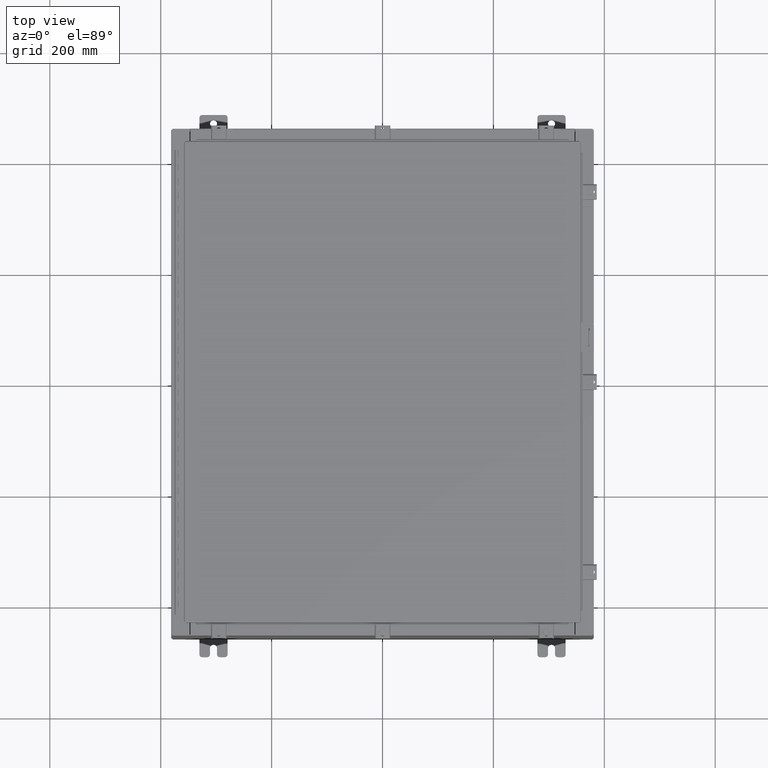
[diagram: clean part render]
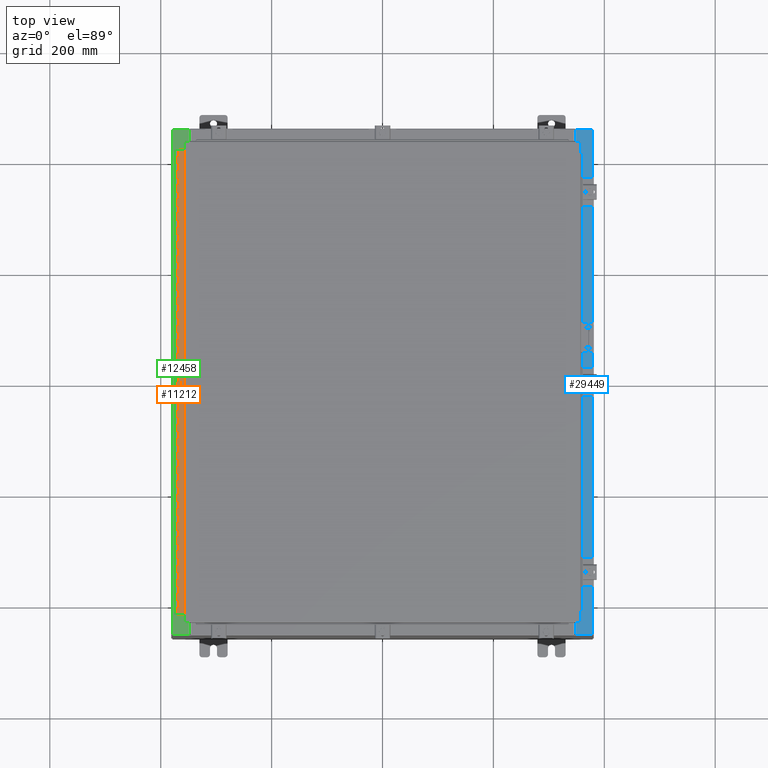
[diagram: same view with three faces highlighted in distinct colors, each labeled with its STEP entity id]
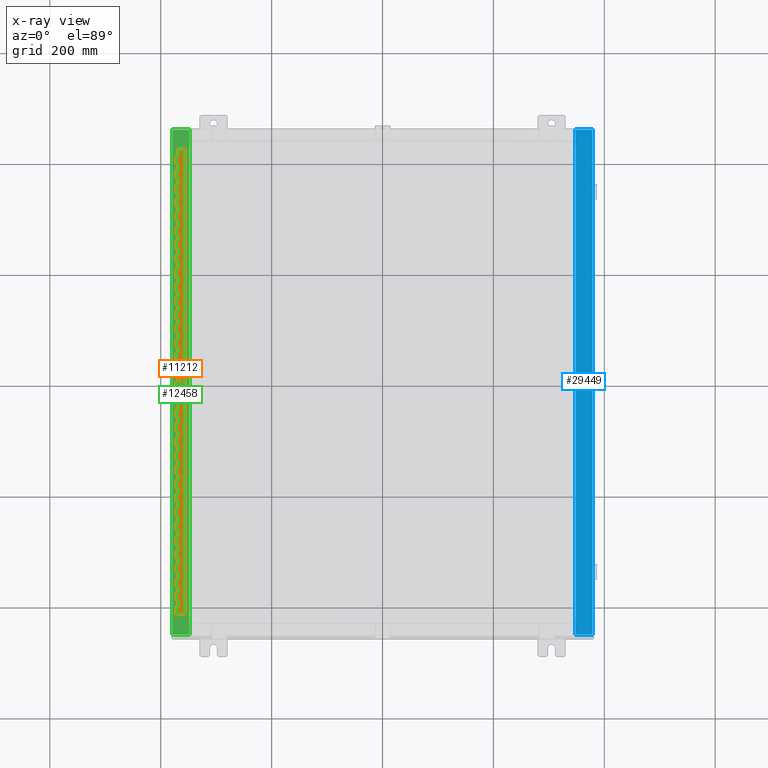
[diagram: x-ray of the same camera — body ghosted, the three highlighted faces saturated]
A machine part, top view with three faces highlighted in distinct colors.
The next image is the same camera in x-ray (body ghosted, the three faces saturated) — at least one of them is partly hidden behind the body in this view.
Their STEP definitions:

[orange] entity #11212 — the highlighted planar face has unit normal (-0, -0, 1).
#91 = DIRECTION ( 'NONE',  ( 3.389037039080723100E-015, 1.000000000000000000, -0.0000000000000000000 ) ) ;
#135 = CARTESIAN_POINT ( 'NONE',  ( -0.6869999999999982800, 0.5504999999999997700, -7.499999999999999100 ) ) ;
#197 = LINE ( 'NONE', #8114, #31486 ) ;
#221 = DIRECTION ( 'NONE',  ( -3.389037039080723100E-015, -1.000000000000000000, 0.0000000000000000000 ) ) ;
#247 = EDGE_CURVE ( 'NONE', #26219, #34784, #25322, .T. ) ;
#366 = CARTESIAN_POINT ( 'NONE',  ( -0.6869999999999973900, 0.8004999999999995500, -2.000000000000000000 ) ) ;
#463 = VERTEX_POINT ( 'NONE', #11750 ) ;
#516 = VECTOR ( 'NONE', #37393, 39.37007874015748100 ) ;
#572 = VERTEX_POINT ( 'NONE', #17807 ) ;
#577 = VECTOR ( 'NONE', #26795, 39.37007874015748100 ) ;
#655 = VECTOR ( 'NONE', #3835, 39.37007874015748100 ) ;
#734 = ORIENTED_EDGE ( 'NONE', *, *, #13985, .F. ) ;
#735 = ORIENTED_EDGE ( 'NONE', *, *, #17118, .F. ) ;
#741 = VECTOR ( 'NONE', #17453, 39.37007874015748100 ) ;
#744 = LINE ( 'NONE', #16733, #25908 ) ;
#851 = LINE ( 'NONE', #24817, #31068 ) ;
#864 = LINE ( 'NONE', #31793, #18260 ) ;
#867 = CARTESIAN_POINT ( 'NONE',  ( -0.6869999999999978300, 0.6754999999999996600, -26.50000000000000400 ) ) ;
#883 = VECTOR ( 'NONE', #11804, 39.37007874015748100 ) ;
#926 = CARTESIAN_POINT ( 'NONE',  ( -0.6869999999999973900, 0.8004999999999995500, -14.99999999999999800 ) ) ;
#928 = VECTOR ( 'NONE', #27055, 39.37007874015748100 ) ;
#984 = LINE ( 'NONE', #32833, #42203 ) ;
#986 = CARTESIAN_POINT ( 'NONE',  ( -0.6869999999999982800, 0.5504999999999997700, -25.50000000000000400 ) ) ;
#1010 = DIRECTION ( 'NONE',  ( 0.0000000000000000000, -0.0000000000000000000, -1.000000000000000000 ) ) ;
#1050 = VERTEX_POINT ( 'NONE', #11474 ) ;
#1073 = ORIENTED_EDGE ( 'NONE', *, *, #5006, .F. ) ;
#1074 = CARTESIAN_POINT ( 'NONE',  ( -0.6869999999999978300, 0.6754999999999996600, -32.50000000000000000 ) ) ;
#1076 = EDGE_CURVE ( 'NONE', #9604, #21913, #43176, .T. ) ;
#1196 = VECTOR ( 'NONE', #23463, 39.37007874015748100 ) ;
#1215 = EDGE_CURVE ( 'NONE', #4284, #26506, #29369, .T. ) ;
#1217 = VERTEX_POINT ( 'NONE', #6839 ) ;
#1281 = VERTEX_POINT ( 'NONE', #7363 ) ;
#1318 = VECTOR ( 'NONE', #7334, 39.37007874015748100 ) ;
#1323 = CARTESIAN_POINT ( 'NONE',  ( -0.6869999999999978300, 0.6754999999999996600, -12.49999999999999800 ) ) ;
#1381 = ORIENTED_EDGE ( 'NONE', *, *, #39084, .T. ) ;
#1383 = CARTESIAN_POINT ( 'NONE',  ( -0.6869999999999978300, 0.6754999999999996600, -1.499999999999999800 ) ) ;
#1408 = ORIENTED_EDGE ( 'NONE', *, *, #15585, .F. ) ;
#1409 = EDGE_CURVE ( 'NONE', #25514, #9943, #26984, .T. ) ;
#1413 = CARTESIAN_POINT ( 'NONE',  ( -0.6869999999999978300, 0.6754999999999996600, -33.00000000000000000 ) ) ;
#1419 = EDGE_CURVE ( 'NONE', #22943, #31893, #22799, .T. ) ;
#1445 = LINE ( 'NONE', #41600, #18846 ) ;
#1520 = ORIENTED_EDGE ( 'NONE', *, *, #30701, .T. ) ;
#1522 = DIRECTION ( 'NONE',  ( -3.389037039080723100E-015, -1.000000000000000000, 0.0000000000000000000 ) ) ;
#1530 = VERTEX_POINT ( 'NONE', #13501 ) ;
#1550 = VERTEX_POINT ( 'NONE', #38940 ) ;
#1553 = ORIENTED_EDGE ( 'NONE', *, *, #4952, .F. ) ;
#1554 = DIRECTION ( 'NONE',  ( 0.0000000000000000000, -0.0000000000000000000, -1.000000000000000000 ) ) ;
#1599 = DIRECTION ( 'NONE',  ( 0.0000000000000000000, -0.0000000000000000000, -1.000000000000000000 ) ) ;
#1627 = CARTESIAN_POINT ( 'NONE',  ( -0.6869999999999982800, 0.5504999999999997700, -2.999999999999999600 ) ) ;
#1654 = VERTEX_POINT ( 'NONE', #37511 ) ;
#1664 = CARTESIAN_POINT ( 'NONE',  ( -0.6869999999999982800, 0.5504999999999997700, -1.499999999999999800 ) ) ;
#1665 = LINE ( 'NONE', #25082, #577 ) ;
#1671 = VERTEX_POINT ( 'NONE', #39035 ) ;
#1676 = DIRECTION ( 'NONE',  ( 3.389037039080723100E-015, 1.000000000000000000, -0.0000000000000000000 ) ) ;
#1812 = LINE ( 'NONE', #42884, #4220 ) ;
#1892 = VECTOR ( 'NONE', #40465, 39.37007874015748100 ) ;
#1929 = DIRECTION ( 'NONE',  ( 0.0000000000000000000, -0.0000000000000000000, -1.000000000000000000 ) ) ;
#1995 = VECTOR ( 'NONE', #5228, 39.37007874015748100 ) ;
#2014 = LINE ( 'NONE', #43650, #928 ) ;
#2018 = VECTOR ( 'NONE', #9842, 39.37007874015748100 ) ;
#2036 = EDGE_CURVE ( 'NONE', #40611, #32991, #9703, .T. ) ;
#2067 = CARTESIAN_POINT ( 'NONE',  ( -0.6869999999999978300, 0.6754999999999996600, -33.00000000000000000 ) ) ;
#2189 = CARTESIAN_POINT ( 'NONE',  ( -0.6869999999999982800, 0.5504999999999997700, -23.99999999999999600 ) ) ;
#2193 = DIRECTION ( 'NONE',  ( 3.389037039080723100E-015, 1.000000000000000000, -0.0000000000000000000 ) ) ;
#2195 = CARTESIAN_POINT ( 'NONE',  ( -0.6869999999999982800, 0.5504999999999997700, -15.50000000000000000 ) ) ;
#2267 = LINE ( 'NONE', #2067, #14221 ) ;
#2276 = VERTEX_POINT ( 'NONE', #3869 ) ;
#2281 = ORIENTED_EDGE ( 'NONE', *, *, #8540, .F. ) ;
#2304 = LINE ( 'NONE', #7142, #23616 ) ;
#2329 = LINE ( 'NONE', #1413, #9537 ) ;
#2408 = DIRECTION ( 'NONE',  ( 3.389037039080723100E-015, 1.000000000000000000, -0.0000000000000000000 ) ) ;
#2426 = CARTESIAN_POINT ( 'NONE',  ( -0.6869999999999982800, 0.5504999999999997700, -32.50000000000000000 ) ) ;
#2436 = VECTOR ( 'NONE', #25442, 39.37007874015748100 ) ;
#2507 = ORIENTED_EDGE ( 'NONE', *, *, #17380, .F. ) ;
#2520 = EDGE_CURVE ( 'NONE', #34002, #31983, #7894, .T. ) ;
#2669 = EDGE_CURVE ( 'NONE', #28130, #40188, #27123, .T. ) ;
#2755 = CARTESIAN_POINT ( 'NONE',  ( -0.6869999999999978300, 0.6754999999999996600, -22.50000000000000000 ) ) ;
#2760 = CARTESIAN_POINT ( 'NONE',  ( -0.6869999999999978300, 0.6754999999999996600, -8.000000000000000000 ) ) ;
#2788 = VECTOR ( 'NONE', #3078, 39.37007874015748100 ) ;
#2793 = LINE ( 'NONE', #29023, #1196 ) ;
#2795 = LINE ( 'NONE', #10406, #4397 ) ;
#2796 = CARTESIAN_POINT ( 'NONE',  ( -0.6869999999999978300, 0.6754999999999996600, -21.00000000000000000 ) ) ;
#2914 = EDGE_CURVE ( 'NONE', #10987, #34997, #13449, .T. ) ;
#2928 = CARTESIAN_POINT ( 'NONE',  ( -0.6869999999999973900, 0.8004999999999995500, -6.000000000000000900 ) ) ;
#2953 = VERTEX_POINT ( 'NONE', #27476 ) ;
#2974 = ORIENTED_EDGE ( 'NONE', *, *, #8398, .F. ) ;
#2977 = EDGE_CURVE ( 'NONE', #42989, #23611, #10775, .T. ) ;
#3009 = ORIENTED_EDGE ( 'NONE', *, *, #9396, .F. ) ;
#3030 = LINE ( 'NONE', #22015, #31431 ) ;
#3034 = EDGE_CURVE ( 'NONE', #21411, #37887, #5296, .T. ) ;
#3078 = DIRECTION ( 'NONE',  ( 3.389037039080723100E-015, 1.000000000000000000, -0.0000000000000000000 ) ) ;
#3136 = DIRECTION ( 'NONE',  ( -3.389037039080723100E-015, -1.000000000000000000, 0.0000000000000000000 ) ) ;
#3203 = VECTOR ( 'NONE', #6269, 39.37007874015748100 ) ;
#3232 = ORIENTED_EDGE ( 'NONE', *, *, #29849, .F. ) ;
#3256 = VECTOR ( 'NONE', #1554, 39.37007874015748100 ) ;
#3267 = DIRECTION ( 'NONE',  ( 3.389037039080723100E-015, 1.000000000000000000, -0.0000000000000000000 ) ) ;
#3362 = CARTESIAN_POINT ( 'NONE',  ( -0.6869999999999982800, 0.5504999999999997700, -31.00000000000000000 ) ) ;
#3450 = DIRECTION ( 'NONE',  ( 0.0000000000000000000, 0.0000000000000000000, 1.000000000000000000 ) ) ;
#3557 = LINE ( 'NONE', #27719, #883 ) ;
#3587 = EDGE_CURVE ( 'NONE', #38420, #4284, #21239, .T. ) ;
#3600 = VECTOR ( 'NONE', #16729, 39.37007874015748100 ) ;
#3607 = LINE ( 'NONE', #18185, #4173 ) ;
#3618 = DIRECTION ( 'NONE',  ( -3.389037039080723100E-015, -1.000000000000000000, 0.0000000000000000000 ) ) ;
#3622 = VECTOR ( 'NONE', #32655, 39.37007874015748100 ) ;
#3645 = LINE ( 'NONE', #17427, #7428 ) ;
#3647 = EDGE_CURVE ( 'NONE', #24537, #10280, #17988, .T. ) ;
#3666 = LINE ( 'NONE', #11538, #11844 ) ;
#3718 = VECTOR ( 'NONE', #28999, 39.37007874015748100 ) ;
#3774 = VERTEX_POINT ( 'NONE', #27751 ) ;
#3805 = ORIENTED_EDGE ( 'NONE', *, *, #2669, .T. ) ;
#3827 = VECTOR ( 'NONE', #91, 39.37007874015748100 ) ;
#3835 = DIRECTION ( 'NONE',  ( -3.389037039080723100E-015, -1.000000000000000000, 0.0000000000000000000 ) ) ;
#3869 = CARTESIAN_POINT ( 'NONE',  ( -0.6869999999999982800, 0.5504999999999997700, -17.99999999999999600 ) ) ;
#3990 = ORIENTED_EDGE ( 'NONE', *, *, #31275, .F. ) ;
#4002 = CARTESIAN_POINT ( 'NONE',  ( -0.6869999999999978300, 0.6754999999999996600, -18.50000000000000000 ) ) ;
#4026 = DIRECTION ( 'NONE',  ( -3.389037039080723100E-015, -1.000000000000000000, 0.0000000000000000000 ) ) ;
#4094 = CARTESIAN_POINT ( 'NONE',  ( -0.6869999999999973900, 0.8004999999999995500, -5.000000000000000000 ) ) ;
#4173 = VECTOR ( 'NONE', #26207, 39.37007874015748100 ) ;
#4185 = DIRECTION ( 'NONE',  ( 0.0000000000000000000, -0.0000000000000000000, -1.000000000000000000 ) ) ;
#4204 = DIRECTION ( 'NONE',  ( 0.0000000000000000000, 0.0000000000000000000, 1.000000000000000000 ) ) ;
#4220 = VECTOR ( 'NONE', #29361, 39.37007874015748100 ) ;
#4284 = VERTEX_POINT ( 'NONE', #42091 ) ;
#4377 = CARTESIAN_POINT ( 'NONE',  ( -0.6869999999999982800, 0.5504999999999997700, -28.00000000000000000 ) ) ;
#4397 = VECTOR ( 'NONE', #13975, 39.37007874015748100 ) ;
#4460 = EDGE_CURVE ( 'NONE', #36597, #37052, #31945, .T. ) ;
#4655 = VERTEX_POINT ( 'NONE', #12116 ) ;
#4676 = EDGE_CURVE ( 'NONE', #29256, #43012, #30677, .T. ) ;
#4779 = LINE ( 'NONE', #13613, #2018 ) ;
#4847 = CARTESIAN_POINT ( 'NONE',  ( -0.6869999999999973900, 0.8004999999999995500, -11.99999999999999800 ) ) ;
#4857 = LINE ( 'NONE', #38719, #30707 ) ;
#4952 = EDGE_CURVE ( 'NONE', #38895, #33413, #15070, .T. ) ;
#5006 = EDGE_CURVE ( 'NONE', #1050, #31893, #4779, .T. ) ;
#5007 = ORIENTED_EDGE ( 'NONE', *, *, #13746, .F. ) ;
#5020 = ORIENTED_EDGE ( 'NONE', *, *, #20128, .F. ) ;
#5031 = CARTESIAN_POINT ( 'NONE',  ( -0.6869999999999982800, 0.5504999999999997700, -8.500000000000000000 ) ) ;
#5066 = EDGE_CURVE ( 'NONE', #33105, #25514, #38203, .T. ) ;
#5076 = VERTEX_POINT ( 'NONE', #18514 ) ;
#5087 = VECTOR ( 'NONE', #39822, 39.37007874015748100 ) ;
#5102 = DIRECTION ( 'NONE',  ( -3.389037039080723100E-015, -1.000000000000000000, 0.0000000000000000000 ) ) ;
#5103 = ORIENTED_EDGE ( 'NONE', *, *, #27981, .F. ) ;
#5156 = CARTESIAN_POINT ( 'NONE',  ( -0.6869999999999982800, 0.5504999999999997700, -32.00000000000000000 ) ) ;
#5227 = CARTESIAN_POINT ( 'NONE',  ( -0.6869999999999978300, 0.6754999999999996600, -33.00000000000000000 ) ) ;
#5228 = DIRECTION ( 'NONE',  ( -3.389037039080723100E-015, -1.000000000000000000, 0.0000000000000000000 ) ) ;
#5246 = LINE ( 'NONE', #23629, #7579 ) ;
#5258 = CARTESIAN_POINT ( 'NONE',  ( -0.6869999999999982800, 0.5504999999999997700, -14.00000000000000000 ) ) ;
#5288 = CARTESIAN_POINT ( 'NONE',  ( -0.6869999999999973900, 0.8004999999999995500, -32.50000000000000000 ) ) ;
#5291 = EDGE_CURVE ( 'NONE', #5762, #3774, #744, .T. ) ;
#5296 = LINE ( 'NONE', #34536, #3600 ) ;
#5301 = LINE ( 'NONE', #19361, #32152 ) ;
#5309 = CARTESIAN_POINT ( 'NONE',  ( -0.6869999999999982800, 0.5504999999999997700, -22.50000000000000000 ) ) ;
#5565 = CARTESIAN_POINT ( 'NONE',  ( -0.6869999999999973900, 0.8004999999999995500, -30.50000000000000400 ) ) ;
#5580 = VERTEX_POINT ( 'NONE', #6904 ) ;
#5592 = VERTEX_POINT ( 'NONE', #13356 ) ;
#5609 = CARTESIAN_POINT ( 'NONE',  ( -0.6869999999999973900, 0.8004999999999995500, -19.50000000000000000 ) ) ;
#5643 = EDGE_CURVE ( 'NONE', #21754, #28539, #32988, .T. ) ;
#5651 = ORIENTED_EDGE ( 'NONE', *, *, #20131, .F. ) ;
#5736 = CARTESIAN_POINT ( 'NONE',  ( -0.6869999999999998300, 0.07549999999999991400, -33.00000000000000000 ) ) ;
#5762 = VERTEX_POINT ( 'NONE', #5031 ) ;
#5768 = ORIENTED_EDGE ( 'NONE', *, *, #8494, .F. ) ;
#5771 = VECTOR ( 'NONE', #2193, 39.37007874015748100 ) ;
#5861 = VECTOR ( 'NONE', #5102, 39.37007874015748100 ) ;
#5884 = VERTEX_POINT ( 'NONE', #26289 ) ;
#5901 = VECTOR ( 'NONE', #27179, 39.37007874015748100 ) ;
#5904 = VECTOR ( 'NONE', #10431, 39.37007874015748100 ) ;
#5922 = VERTEX_POINT ( 'NONE', #18354 ) ;
#5938 = EDGE_CURVE ( 'NONE', #31648, #12725, #35488, .T. ) ;
#5954 = CARTESIAN_POINT ( 'NONE',  ( -0.6869999999999978300, 0.6754999999999996600, -33.00000000000000000 ) ) ;
#5971 = VERTEX_POINT ( 'NONE', #22441 ) ;
#6053 = CARTESIAN_POINT ( 'NONE',  ( -0.6869999999999973900, 0.8004999999999995500, -23.99999999999999600 ) ) ;
#6085 = LINE ( 'NONE', #13971, #5904 ) ;
#6150 = EDGE_CURVE ( 'NONE', #40806, #12302, #23482, .T. ) ;
#6153 = ORIENTED_EDGE ( 'NONE', *, *, #21140, .T. ) ;
#6269 = DIRECTION ( 'NONE',  ( -3.389037039080723100E-015, -1.000000000000000000, 0.0000000000000000000 ) ) ;
#6295 = CARTESIAN_POINT ( 'NONE',  ( -0.6869999999999982800, 0.5504999999999997700, -19.00000000000000000 ) ) ;
#6315 = LINE ( 'NONE', #9538, #36479 ) ;
#6345 = EDGE_CURVE ( 'NONE', #27801, #1671, #9669, .T. ) ;
#6374 = CARTESIAN_POINT ( 'NONE',  ( -0.6869999999999982800, 0.5504999999999997700, -29.99999999999999600 ) ) ;
#6421 = EDGE_CURVE ( 'NONE', #10329, #25164, #30778, .T. ) ;
#6482 = EDGE_CURVE ( 'NONE', #42616, #5922, #851, .T. ) ;
#6538 = EDGE_CURVE ( 'NONE', #43193, #15799, #3645, .T. ) ;
#6644 = DIRECTION ( 'NONE',  ( 0.0000000000000000000, 0.0000000000000000000, 1.000000000000000000 ) ) ;
#6685 = VECTOR ( 'NONE', #14407, 39.37007874015748100 ) ;
#6704 = EDGE_CURVE ( 'NONE', #43329, #26506, #17890, .T. ) ;
#6772 = LINE ( 'NONE', #40385, #7519 ) ;
#6819 = LINE ( 'NONE', #5227, #6825 ) ;
#6825 = VECTOR ( 'NONE', #28545, 39.37007874015748100 ) ;
#6839 = CARTESIAN_POINT ( 'NONE',  ( -0.6869999999999978300, 0.6754999999999996600, -6.000000000000000900 ) ) ;
#6904 = CARTESIAN_POINT ( 'NONE',  ( -0.6869999999999982800, 0.5504999999999997700, -30.50000000000000400 ) ) ;
#7016 = VERTEX_POINT ( 'NONE', #1074 ) ;
#7042 = EDGE_CURVE ( 'NONE', #37495, #13828, #23767, .T. ) ;
#7142 = CARTESIAN_POINT ( 'NONE',  ( -0.6869999999999978300, 0.6754999999999996600, -33.00000000000000000 ) ) ;
#7145 = VERTEX_POINT ( 'NONE', #25990 ) ;
#7174 = EDGE_CURVE ( 'NONE', #40261, #572, #21351, .T. ) ;
#7235 = EDGE_CURVE ( 'NONE', #22943, #31411, #28757, .T. ) ;
#7318 = EDGE_CURVE ( 'NONE', #39465, #38420, #30174, .T. ) ;
#7334 = DIRECTION ( 'NONE',  ( 0.0000000000000000000, 0.0000000000000000000, 1.000000000000000000 ) ) ;
#7363 = CARTESIAN_POINT ( 'NONE',  ( -0.6869999999999982800, 0.5504999999999997700, -21.50000000000000400 ) ) ;
#7428 = VECTOR ( 'NONE', #1929, 39.37007874015748100 ) ;
#7467 = CARTESIAN_POINT ( 'NONE',  ( -0.6869999999999978300, 0.6754999999999996600, -14.99999999999999800 ) ) ;
#7518 = VECTOR ( 'NONE', #15065, 39.37007874015748100 ) ;
#7519 = VECTOR ( 'NONE', #28892, 39.37007874015748100 ) ;
#7579 = VECTOR ( 'NONE', #9352, 39.37007874015748100 ) ;
#7659 = VECTOR ( 'NONE', #33853, 39.37007874015748100 ) ;
#7685 = CARTESIAN_POINT ( 'NONE',  ( -0.6869999999999978300, 0.6754999999999996600, -21.50000000000000400 ) ) ;
#7697 = CARTESIAN_POINT ( 'NONE',  ( -0.6869999999999982800, 0.5504999999999997700, -27.50000000000000000 ) ) ;
#7853 = EDGE_CURVE ( 'NONE', #26157, #42989, #27327, .T. ) ;
#7861 = EDGE_CURVE ( 'NONE', #23519, #12725, #35323, .T. ) ;
#7884 = VECTOR ( 'NONE', #26913, 39.37007874015748100 ) ;
#7894 = LINE ( 'NONE', #20055, #7884 ) ;
#7922 = VERTEX_POINT ( 'NONE', #11034 ) ;
#7948 = DIRECTION ( 'NONE',  ( 3.389037039080723100E-015, 1.000000000000000000, -0.0000000000000000000 ) ) ;
#7985 = EDGE_CURVE ( 'NONE', #21774, #22053, #23124, .T. ) ;
#8089 = VECTOR ( 'NONE', #26994, 39.37007874015748100 ) ;
#8114 = CARTESIAN_POINT ( 'NONE',  ( -0.6869999999999973900, 0.8004999999999995500, -24.99999999999999600 ) ) ;
#8131 = EDGE_CURVE ( 'NONE', #21617, #26912, #26367, .T. ) ;
#8167 = CARTESIAN_POINT ( 'NONE',  ( -0.6869999999999982800, 0.5504999999999997700, -11.00000000000000000 ) ) ;
#8202 = EDGE_CURVE ( 'NONE', #41788, #31398, #3030, .T. ) ;
#8209 = EDGE_CURVE ( 'NONE', #23611, #43615, #197, .T. ) ;
#8225 = ORIENTED_EDGE ( 'NONE', *, *, #16101, .T. ) ;
#8281 = DIRECTION ( 'NONE',  ( 0.0000000000000000000, 0.0000000000000000000, 1.000000000000000000 ) ) ;
#8334 = EDGE_CURVE ( 'NONE', #463, #34013, #18689, .T. ) ;
#8398 = EDGE_CURVE ( 'NONE', #7016, #30654, #38791, .T. ) ;
#8447 = ORIENTED_EDGE ( 'NONE', *, *, #13475, .F. ) ;
#8468 = LINE ( 'NONE', #20411, #11836 ) ;
#8494 = EDGE_CURVE ( 'NONE', #12656, #40188, #32508, .T. ) ;
#8530 = ORIENTED_EDGE ( 'NONE', *, *, #14304, .F. ) ;
#8540 = EDGE_CURVE ( 'NONE', #15799, #34918, #16519, .T. ) ;
#8559 = ORIENTED_EDGE ( 'NONE', *, *, #38544, .F. ) ;
#8594 = EDGE_CURVE ( 'NONE', #5580, #25877, #41922, .T. ) ;
#8648 = VECTOR ( 'NONE', #11475, 39.37007874015748100 ) ;
#8662 = ORIENTED_EDGE ( 'NONE', *, *, #28037, .T. ) ;
#8746 = ORIENTED_EDGE ( 'NONE', *, *, #19365, .T. ) ;
#8757 = VERTEX_POINT ( 'NONE', #18003 ) ;
#8794 = VERTEX_POINT ( 'NONE', #10752 ) ;
#8832 = DIRECTION ( 'NONE',  ( 0.0000000000000000000, -0.0000000000000000000, -1.000000000000000000 ) ) ;
#8902 = LINE ( 'NONE', #33538, #40567 ) ;
#8912 = DIRECTION ( 'NONE',  ( 0.0000000000000000000, -0.0000000000000000000, -1.000000000000000000 ) ) ;
#8970 = CARTESIAN_POINT ( 'NONE',  ( -0.6869999999999973900, 0.8004999999999995500, -6.499999999999999100 ) ) ;
#9005 = VECTOR ( 'NONE', #3618, 39.37007874015748100 ) ;
#9008 = CARTESIAN_POINT ( 'NONE',  ( -0.6869999999999998300, 0.07549999999999991400, -33.00000000000000000 ) ) ;
#9043 = ORIENTED_EDGE ( 'NONE', *, *, #2036, .F. ) ;
#9049 = CARTESIAN_POINT ( 'NONE',  ( -0.6869999999999982800, 0.5504999999999997700, -29.50000000000000000 ) ) ;
#9102 = DIRECTION ( 'NONE',  ( -3.389037039080723100E-015, -1.000000000000000000, 0.0000000000000000000 ) ) ;
#9133 = EDGE_CURVE ( 'NONE', #25559, #34046, #37522, .T. ) ;
#9152 = DIRECTION ( 'NONE',  ( -3.389037039080723100E-015, -1.000000000000000000, 0.0000000000000000000 ) ) ;
#9180 = CARTESIAN_POINT ( 'NONE',  ( -0.6869999999999973900, 0.8004999999999995500, -7.000000000000000000 ) ) ;
#9191 = EDGE_CURVE ( 'NONE', #37495, #21271, #2267, .T. ) ;
#9258 = EDGE_CURVE ( 'NONE', #39362, #18833, #2793, .T. ) ;
#9268 = CARTESIAN_POINT ( 'NONE',  ( -0.6869999999999978300, 0.6754999999999996600, -7.499999999999999100 ) ) ;
#9304 = ORIENTED_EDGE ( 'NONE', *, *, #9258, .F. ) ;
#9312 = VECTOR ( 'NONE', #12461, 39.37007874015748100 ) ;
#9352 = DIRECTION ( 'NONE',  ( -3.389037039080723100E-015, -1.000000000000000000, 0.0000000000000000000 ) ) ;
#9396 = EDGE_CURVE ( 'NONE', #18681, #21271, #9467, .T. ) ;
#9467 = LINE ( 'NONE', #14840, #14788 ) ;
#9479 = CARTESIAN_POINT ( 'NONE',  ( -0.6869999999999978300, 0.6754999999999996600, -33.00000000000000000 ) ) ;
#9537 = VECTOR ( 'NONE', #12977, 39.37007874015748100 ) ;
#9538 = CARTESIAN_POINT ( 'NONE',  ( -0.6869999999999978300, 0.6754999999999996600, -33.00000000000000000 ) ) ;
#9584 = ORIENTED_EDGE ( 'NONE', *, *, #37479, .F. ) ;
#9596 = EDGE_CURVE ( 'NONE', #32441, #43730, #35737, .T. ) ;
#9604 = VERTEX_POINT ( 'NONE', #26398 ) ;
#9617 = DIRECTION ( 'NONE',  ( 0.0000000000000000000, 0.0000000000000000000, 1.000000000000000000 ) ) ;
#9618 = DIRECTION ( 'NONE',  ( -3.389037039080723100E-015, -1.000000000000000000, 0.0000000000000000000 ) ) ;
#9668 = CARTESIAN_POINT ( 'NONE',  ( -0.6869999999999982800, 0.5504999999999997700, -21.00000000000000000 ) ) ;
#9669 = LINE ( 'NONE', #34675, #3622 ) ;
#9701 = CARTESIAN_POINT ( 'NONE',  ( -0.6869999999999973900, 0.8004999999999995500, -16.50000000000000000 ) ) ;
#9703 = LINE ( 'NONE', #30731, #9005 ) ;
#9809 = CARTESIAN_POINT ( 'NONE',  ( -0.6869999999999982800, 0.5504999999999997700, -12.49999999999999800 ) ) ;
#9842 = DIRECTION ( 'NONE',  ( 3.389037039080723100E-015, 1.000000000000000000, -0.0000000000000000000 ) ) ;
#9886 = CARTESIAN_POINT ( 'NONE',  ( -0.6869999999999978300, 0.6754999999999996600, -27.50000000000000000 ) ) ;
#9943 = VERTEX_POINT ( 'NONE', #36963 ) ;
#10000 = ORIENTED_EDGE ( 'NONE', *, *, #20141, .F. ) ;
#10048 = ORIENTED_EDGE ( 'NONE', *, *, #9191, .T. ) ;
#10083 = CARTESIAN_POINT ( 'NONE',  ( -0.6869999999999982800, 0.5504999999999997700, -9.500000000000000000 ) ) ;
#10096 = VERTEX_POINT ( 'NONE', #36872 ) ;
#10102 = CARTESIAN_POINT ( 'NONE',  ( -0.6869999999999973900, 0.8004999999999995500, -10.00000000000000000 ) ) ;
#10144 = VECTOR ( 'NONE', #34374, 39.37007874015748100 ) ;
#10189 = EDGE_CURVE ( 'NONE', #5592, #4655, #36677, .T. ) ;
#10194 = EDGE_CURVE ( 'NONE', #27310, #18681, #43080, .T. ) ;
#10201 = ORIENTED_EDGE ( 'NONE', *, *, #29661, .F. ) ;
#10250 = CARTESIAN_POINT ( 'NONE',  ( -0.6869999999999973900, 0.8004999999999995500, -1.499999999999999800 ) ) ;
#10279 = ORIENTED_EDGE ( 'NONE', *, *, #33910, .T. ) ;
#10280 = VERTEX_POINT ( 'NONE', #27640 ) ;
#10298 = VERTEX_POINT ( 'NONE', #32550 ) ;
#10305 = DIRECTION ( 'NONE',  ( 3.389037039080723100E-015, 1.000000000000000000, -0.0000000000000000000 ) ) ;
#10329 = VERTEX_POINT ( 'NONE', #20322 ) ;
#10344 = VECTOR ( 'NONE', #35169, 39.37007874015748100 ) ;
#10350 = VECTOR ( 'NONE', #19723, 39.37007874015748100 ) ;
#10406 = CARTESIAN_POINT ( 'NONE',  ( -0.6869999999999973900, 0.8004999999999995500, -5.500000000000000000 ) ) ;
#10431 = DIRECTION ( 'NONE',  ( -3.389037039080723100E-015, -1.000000000000000000, 0.0000000000000000000 ) ) ;
#10444 = CARTESIAN_POINT ( 'NONE',  ( -0.6869999999999982800, 0.5504999999999997700, -21.50000000000000400 ) ) ;
#10665 = DIRECTION ( 'NONE',  ( 0.0000000000000000000, -0.0000000000000000000, -1.000000000000000000 ) ) ;
#10704 = LINE ( 'NONE', #35723, #10344 ) ;
#10727 = CARTESIAN_POINT ( 'NONE',  ( -0.6869999999999978300, 0.6754999999999996600, -33.00000000000000000 ) ) ;
#10752 = CARTESIAN_POINT ( 'NONE',  ( -0.6869999999999978300, 0.6754999999999996600, -12.99999999999999800 ) ) ;
#10775 = LINE ( 'NONE', #16113, #8089 ) ;
#10789 = VECTOR ( 'NONE', #36247, 39.37007874015748100 ) ;
#10838 = CARTESIAN_POINT ( 'NONE',  ( -0.6869999999999978300, 0.6754999999999996600, -33.00000000000000000 ) ) ;
#10852 = ORIENTED_EDGE ( 'NONE', *, *, #10194, .F. ) ;
#10873 = LINE ( 'NONE', #34328, #10144 ) ;
#10882 = EDGE_CURVE ( 'NONE', #7016, #12637, #6819, .T. ) ;
#10965 = ORIENTED_EDGE ( 'NONE', *, *, #7985, .F. ) ;
#10986 = LINE ( 'NONE', #36296, #10789 ) ;
#10987 = VERTEX_POINT ( 'NONE', #37773 ) ;
#11034 = CARTESIAN_POINT ( 'NONE',  ( -0.6869999999999978300, 0.6754999999999996600, -10.50000000000000000 ) ) ;
#11055 = ORIENTED_EDGE ( 'NONE', *, *, #12224, .F. ) ;
#11105 = EDGE_CURVE ( 'NONE', #38977, #41791, #2329, .T. ) ;
#11108 = ORIENTED_EDGE ( 'NONE', *, *, #41631, .F. ) ;
#11114 = VECTOR ( 'NONE', #3136, 39.37007874015748100 ) ;
#11128 = DIRECTION ( 'NONE',  ( 3.389037039080723100E-015, 1.000000000000000000, -0.0000000000000000000 ) ) ;
#11194 = CARTESIAN_POINT ( 'NONE',  ( -0.6869999999999982800, 0.5504999999999997700, -11.50000000000000000 ) ) ;
#11212 = ADVANCED_FACE ( 'NONE', ( #43210 ), #35467, .T. ) ;
#11219 = ORIENTED_EDGE ( 'NONE', *, *, #6345, .T. ) ;
#11277 = DIRECTION ( 'NONE',  ( -3.389037039080723100E-015, -1.000000000000000000, 0.0000000000000000000 ) ) ;
#11311 = LINE ( 'NONE', #9479, #10350 ) ;
#11317 = LINE ( 'NONE', #12220, #1995 ) ;
#11388 = DIRECTION ( 'NONE',  ( 0.0000000000000000000, -0.0000000000000000000, -1.000000000000000000 ) ) ;
#11474 = CARTESIAN_POINT ( 'NONE',  ( -0.6869999999999982800, 0.5504999999999997700, -23.00000000000000000 ) ) ;
#11475 = DIRECTION ( 'NONE',  ( 0.0000000000000000000, -0.0000000000000000000, -1.000000000000000000 ) ) ;
#11485 = DIRECTION ( 'NONE',  ( 3.389037039080723100E-015, 1.000000000000000000, -0.0000000000000000000 ) ) ;
#11538 = CARTESIAN_POINT ( 'NONE',  ( -0.6869999999999973900, 0.8004999999999995500, -31.00000000000000000 ) ) ;
#11608 = EDGE_CURVE ( 'NONE', #34997, #12637, #20510, .T. ) ;
#11619 = VECTOR ( 'NONE', #12520, 39.37007874015748100 ) ;
#11667 = DIRECTION ( 'NONE',  ( 0.0000000000000000000, 0.0000000000000000000, 1.000000000000000000 ) ) ;
#11715 = LINE ( 'NONE', #13388, #41789 ) ;
#11721 = ORIENTED_EDGE ( 'NONE', *, *, #41324, .F. ) ;
#11728 = LINE ( 'NONE', #32237, #32326 ) ;
#11750 = CARTESIAN_POINT ( 'NONE',  ( -0.6869999999999978300, 0.6754999999999996600, -19.50000000000000000 ) ) ;
#11767 = DIRECTION ( 'NONE',  ( -3.389037039080723100E-015, -1.000000000000000000, 0.0000000000000000000 ) ) ;
#11769 = VECTOR ( 'NONE', #13542, 39.37007874015748100 ) ;
#11775 = ORIENTED_EDGE ( 'NONE', *, *, #9133, .F. ) ;
#11804 = DIRECTION ( 'NONE',  ( -3.389037039080723100E-015, -1.000000000000000000, 0.0000000000000000000 ) ) ;
#11818 = VECTOR ( 'NONE', #1010, 39.37007874015748100 ) ;
#11836 = VECTOR ( 'NONE', #19147, 39.37007874015748100 ) ;
#11844 = VECTOR ( 'NONE', #7948, 39.37007874015748100 ) ;
#11866 = VECTOR ( 'NONE', #25401, 39.37007874015748100 ) ;
#11875 = DIRECTION ( 'NONE',  ( 0.0000000000000000000, -0.0000000000000000000, -1.000000000000000000 ) ) ;
#11906 = EDGE_CURVE ( 'NONE', #12090, #37052, #3607, .T. ) ;
#11941 = EDGE_CURVE ( 'NONE', #22103, #8794, #6315, .T. ) ;
#11947 = ORIENTED_EDGE ( 'NONE', *, *, #1076, .F. ) ;
#12027 = VECTOR ( 'NONE', #41377, 39.37007874015748100 ) ;
#12045 = VERTEX_POINT ( 'NONE', #23748 ) ;
#12090 = VERTEX_POINT ( 'NONE', #24640 ) ;
#12116 = CARTESIAN_POINT ( 'NONE',  ( -0.6869999999999982800, 0.5504999999999997700, -6.000000000000000900 ) ) ;
#12128 = DIRECTION ( 'NONE',  ( -3.389037039080723100E-015, -1.000000000000000000, 0.0000000000000000000 ) ) ;
#12220 = CARTESIAN_POINT ( 'NONE',  ( -0.6869999999999973900, 0.8004999999999995500, -22.50000000000000000 ) ) ;
#12224 = EDGE_CURVE ( 'NONE', #43730, #37322, #30309, .T. ) ;
#12278 = CARTESIAN_POINT ( 'NONE',  ( -0.6870000000000022800, -0.6245000000000003900, -33.00000000000000000 ) ) ;
#12302 = VERTEX_POINT ( 'NONE', #33352 ) ;
#12461 = DIRECTION ( 'NONE',  ( -3.389037039080723100E-015, -1.000000000000000000, 0.0000000000000000000 ) ) ;
#12477 = LINE ( 'NONE', #36255, #3203 ) ;
#12520 = DIRECTION ( 'NONE',  ( 0.0000000000000000000, 0.0000000000000000000, 1.000000000000000000 ) ) ;
#12576 = EDGE_CURVE ( 'NONE', #43012, #19551, #1812, .T. ) ;
#12637 = VERTEX_POINT ( 'NONE', #32053 ) ;
#12656 = VERTEX_POINT ( 'NONE', #25605 ) ;
#12657 = CARTESIAN_POINT ( 'NONE',  ( -0.6869999999999973900, 0.8004999999999995500, -9.000000000000000000 ) ) ;
#12725 = VERTEX_POINT ( 'NONE', #18837 ) ;
#12775 = VERTEX_POINT ( 'NONE', #29759 ) ;
#12832 = VECTOR ( 'NONE', #30792, 39.37007874015748100 ) ;
#12943 = CARTESIAN_POINT ( 'NONE',  ( -0.6869999999999978300, 0.6754999999999996600, -11.50000000000000000 ) ) ;
#12954 = EDGE_CURVE ( 'NONE', #1281, #27167, #29489, .T. ) ;
#12977 = DIRECTION ( 'NONE',  ( 0.0000000000000000000, 0.0000000000000000000, 1.000000000000000000 ) ) ;
#13058 = EDGE_CURVE ( 'NONE', #22103, #21754, #20422, .T. ) ;
#13061 = CARTESIAN_POINT ( 'NONE',  ( -0.6869999999999978300, 0.6754999999999996600, -33.00000000000000000 ) ) ;
#13133 = EDGE_CURVE ( 'NONE', #10280, #42219, #25363, .T. ) ;
#13144 = CARTESIAN_POINT ( 'NONE',  ( -0.6869999999999973900, 0.8004999999999995500, -3.500000000000000000 ) ) ;
#13165 = VECTOR ( 'NONE', #34127, 39.37007874015748100 ) ;
#13277 = CARTESIAN_POINT ( 'NONE',  ( -0.6869999999999973900, 0.8004999999999995500, -20.50000000000000400 ) ) ;
#13294 = CARTESIAN_POINT ( 'NONE',  ( -0.6869999999999982800, 0.5504999999999997700, -29.50000000000000000 ) ) ;
#13298 = CARTESIAN_POINT ( 'NONE',  ( -0.6869999999999978300, 0.6754999999999996600, -27.00000000000000000 ) ) ;
#13304 = ORIENTED_EDGE ( 'NONE', *, *, #11608, .F. ) ;
#13317 = LINE ( 'NONE', #24637, #12832 ) ;
#13356 = CARTESIAN_POINT ( 'NONE',  ( -0.6869999999999982800, 0.5504999999999997700, -5.500000000000000000 ) ) ;
#13364 = CARTESIAN_POINT ( 'NONE',  ( -0.6869999999999978300, 0.6754999999999996600, -33.00000000000000000 ) ) ;
#13388 = CARTESIAN_POINT ( 'NONE',  ( -0.6870000000000022800, -0.6245000000000003900, -33.00000000000000000 ) ) ;
#13418 = CARTESIAN_POINT ( 'NONE',  ( -0.6869999999999982800, 0.5504999999999997700, -8.000000000000000000 ) ) ;
#13449 = LINE ( 'NONE', #40663, #11818 ) ;
#13475 = EDGE_CURVE ( 'NONE', #12775, #26394, #33188, .T. ) ;
#13485 = ORIENTED_EDGE ( 'NONE', *, *, #25487, .T. ) ;
#13501 = CARTESIAN_POINT ( 'NONE',  ( -0.6869999999999982800, 0.5504999999999997700, -2.000000000000000000 ) ) ;
#13516 = DIRECTION ( 'NONE',  ( 3.389037039080723100E-015, 1.000000000000000000, -0.0000000000000000000 ) ) ;
#13542 = DIRECTION ( 'NONE',  ( 3.389037039080723100E-015, 1.000000000000000000, -0.0000000000000000000 ) ) ;
#13543 = CARTESIAN_POINT ( 'NONE',  ( -0.6869999999999982800, 0.5504999999999997700, -23.50000000000000000 ) ) ;
#13613 = CARTESIAN_POINT ( 'NONE',  ( -0.6869999999999973900, 0.8004999999999995500, -23.00000000000000000 ) ) ;
#13682 = LINE ( 'NONE', #34966, #34924 ) ;
#13699 = ORIENTED_EDGE ( 'NONE', *, *, #30576, .F. ) ;
#13744 = CARTESIAN_POINT ( 'NONE',  ( -0.6869999999999978300, 0.6754999999999996600, -13.50000000000000000 ) ) ;
#13746 = EDGE_CURVE ( 'NONE', #18833, #12656, #38784, .T. ) ;
#13768 = CARTESIAN_POINT ( 'NONE',  ( -0.6869999999999982800, 0.5504999999999997700, -4.500000000000000000 ) ) ;
#13787 = CARTESIAN_POINT ( 'NONE',  ( -0.6869999999999973900, 0.8004999999999995500, -12.49999999999999800 ) ) ;
#13806 = EDGE_CURVE ( 'NONE', #5884, #43193, #5246, .T. ) ;
#13828 = VERTEX_POINT ( 'NONE', #1664 ) ;
#13929 = ORIENTED_EDGE ( 'NONE', *, *, #7318, .F. ) ;
#13971 = CARTESIAN_POINT ( 'NONE',  ( -0.6869999999999973900, 0.8004999999999995500, -7.499999999999999100 ) ) ;
#13975 = DIRECTION ( 'NONE',  ( -3.389037039080723100E-015, -1.000000000000000000, 0.0000000000000000000 ) ) ;
#13985 = EDGE_CURVE ( 'NONE', #27801, #10096, #1665, .T. ) ;
#14058 = DIRECTION ( 'NONE',  ( 3.389037039080723100E-015, 1.000000000000000000, -0.0000000000000000000 ) ) ;
#14143 = CARTESIAN_POINT ( 'NONE',  ( -0.6869999999999973900, 0.8004999999999995500, -19.00000000000000000 ) ) ;
#14147 = CARTESIAN_POINT ( 'NONE',  ( -0.6869999999999978300, 0.6754999999999996600, -28.99999999999999600 ) ) ;
#14221 = VECTOR ( 'NONE', #6644, 39.37007874015748100 ) ;
#14252 = EDGE_CURVE ( 'NONE', #2276, #5971, #8902, .T. ) ;
#14304 = EDGE_CURVE ( 'NONE', #40806, #10987, #41281, .T. ) ;
#14324 = ORIENTED_EDGE ( 'NONE', *, *, #21051, .T. ) ;
#14349 = ORIENTED_EDGE ( 'NONE', *, *, #14252, .F. ) ;
#14388 = CARTESIAN_POINT ( 'NONE',  ( -0.6869999999999973900, 0.8004999999999995500, -8.500000000000000000 ) ) ;
#14400 = LINE ( 'NONE', #34589, #33072 ) ;
#14407 = DIRECTION ( 'NONE',  ( 0.0000000000000000000, 0.0000000000000000000, 1.000000000000000000 ) ) ;
#14431 = ORIENTED_EDGE ( 'NONE', *, *, #2520, .T. ) ;
#14493 = LINE ( 'NONE', #20583, #40323 ) ;
#14501 = LINE ( 'NONE', #38500, #22499 ) ;
#14563 = VECTOR ( 'NONE', #29875, 39.37007874015748100 ) ;
#14624 = ORIENTED_EDGE ( 'NONE', *, *, #3647, .F. ) ;
#14661 = EDGE_CURVE ( 'NONE', #8757, #18453, #37283, .T. ) ;
#14730 = EDGE_CURVE ( 'NONE', #28878, #1281, #11728, .T. ) ;
#14746 = DIRECTION ( 'NONE',  ( 0.0000000000000000000, 0.0000000000000000000, 1.000000000000000000 ) ) ;
#14788 = VECTOR ( 'NONE', #10305, 39.37007874015748100 ) ;
#14835 = DIRECTION ( 'NONE',  ( 0.0000000000000000000, -0.0000000000000000000, -1.000000000000000000 ) ) ;
#14840 = CARTESIAN_POINT ( 'NONE',  ( -0.6869999999999973900, 0.8004999999999995500, -1.000000000000000000 ) ) ;
#14922 = EDGE_CURVE ( 'NONE', #38154, #36597, #41021, .T. ) ;
#14973 = ORIENTED_EDGE ( 'NONE', *, *, #7861, .F. ) ;
#15034 = ORIENTED_EDGE ( 'NONE', *, *, #13806, .F. ) ;
#15065 = DIRECTION ( 'NONE',  ( -3.389037039080723100E-015, -1.000000000000000000, 0.0000000000000000000 ) ) ;
#15070 = LINE ( 'NONE', #13277, #7518 ) ;
#15082 = LINE ( 'NONE', #24078, #31694 ) ;
#15131 = ORIENTED_EDGE ( 'NONE', *, *, #13133, .F. ) ;
#15191 = CARTESIAN_POINT ( 'NONE',  ( -0.6869999999999973900, 0.8004999999999995500, -25.50000000000000400 ) ) ;
#15223 = VECTOR ( 'NONE', #9152, 39.37007874015748100 ) ;
#15261 = CARTESIAN_POINT ( 'NONE',  ( -0.6869999999999982800, 0.5504999999999997700, -4.500000000000000000 ) ) ;
#15403 = ORIENTED_EDGE ( 'NONE', *, *, #41043, .T. ) ;
#15486 = LINE ( 'NONE', #25915, #35703 ) ;
#15585 = EDGE_CURVE ( 'NONE', #26974, #24503, #18014, .T. ) ;
#15732 = LINE ( 'NONE', #12657, #2788 ) ;
#15799 = VERTEX_POINT ( 'NONE', #31410 ) ;
#15894 = ORIENTED_EDGE ( 'NONE', *, *, #17192, .T. ) ;
#15976 = CARTESIAN_POINT ( 'NONE',  ( -0.6869999999999982800, 0.5504999999999997700, -9.500000000000000000 ) ) ;
#16101 = EDGE_CURVE ( 'NONE', #7922, #42219, #15486, .T. ) ;
#16113 = CARTESIAN_POINT ( 'NONE',  ( -0.6869999999999982800, 0.5504999999999997700, -24.50000000000000000 ) ) ;
#16312 = EDGE_CURVE ( 'NONE', #40450, #1654, #984, .T. ) ;
#16363 = ORIENTED_EDGE ( 'NONE', *, *, #11906, .T. ) ;
#16426 = ORIENTED_EDGE ( 'NONE', *, *, #5938, .T. ) ;
#16519 = LINE ( 'NONE', #926, #2436 ) ;
#16555 = ORIENTED_EDGE ( 'NONE', *, *, #11941, .T. ) ;
#16672 = EDGE_CURVE ( 'NONE', #13828, #1530, #17729, .T. ) ;
#16697 = CARTESIAN_POINT ( 'NONE',  ( -0.6869999999999982800, 0.5504999999999997700, -19.50000000000000000 ) ) ;
#16729 = DIRECTION ( 'NONE',  ( 0.0000000000000000000, -0.0000000000000000000, -1.000000000000000000 ) ) ;
#16730 = VERTEX_POINT ( 'NONE', #31303 ) ;
#16733 = CARTESIAN_POINT ( 'NONE',  ( -0.6869999999999982800, 0.5504999999999997700, -8.500000000000000000 ) ) ;
#16933 = VECTOR ( 'NONE', #20960, 39.37007874015748100 ) ;
#16968 = CARTESIAN_POINT ( 'NONE',  ( -0.6869999999999982800, 0.5504999999999997700, -4.000000000000000000 ) ) ;
#17051 = VECTOR ( 'NONE', #18030, 39.37007874015748100 ) ;
#17118 = EDGE_CURVE ( 'NONE', #41138, #36573, #29384, .T. ) ;
#17192 = EDGE_CURVE ( 'NONE', #33105, #38067, #11715, .T. ) ;
#17205 = ORIENTED_EDGE ( 'NONE', *, *, #7042, .F. ) ;
#17231 = CARTESIAN_POINT ( 'NONE',  ( -0.6869999999999978300, 0.6754999999999996600, -33.00000000000000000 ) ) ;
#17264 = VERTEX_POINT ( 'NONE', #26842 ) ;
#17380 = EDGE_CURVE ( 'NONE', #28130, #5592, #2795, .T. ) ;
#17388 = EDGE_CURVE ( 'NONE', #12045, #5076, #27991, .T. ) ;
#17416 = ORIENTED_EDGE ( 'NONE', *, *, #28259, .F. ) ;
#17427 = CARTESIAN_POINT ( 'NONE',  ( -0.6869999999999982800, 0.5504999999999997700, -14.49999999999999800 ) ) ;
#17438 = VECTOR ( 'NONE', #41957, 39.37007874015748100 ) ;
#17453 = DIRECTION ( 'NONE',  ( -3.389037039080723100E-015, -1.000000000000000000, 0.0000000000000000000 ) ) ;
#17547 = CARTESIAN_POINT ( 'NONE',  ( -0.6869999999999978300, 0.6754999999999996600, -14.00000000000000000 ) ) ;
#17566 = DIRECTION ( 'NONE',  ( 3.389037039080723100E-015, 1.000000000000000000, -0.0000000000000000000 ) ) ;
#17729 = LINE ( 'NONE', #36114, #22111 ) ;
#17741 = CARTESIAN_POINT ( 'NONE',  ( -0.6869999999999978300, 0.6754999999999996600, -4.500000000000000000 ) ) ;
#17807 = CARTESIAN_POINT ( 'NONE',  ( -0.6869999999999978300, 0.6754999999999996600, -23.99999999999999600 ) ) ;
#17890 = LINE ( 'NONE', #23288, #1318 ) ;
#17946 = DIRECTION ( 'NONE',  ( -3.389037039080723100E-015, -1.000000000000000000, 0.0000000000000000000 ) ) ;
#17988 = LINE ( 'NONE', #15976, #16933 ) ;
#18003 = CARTESIAN_POINT ( 'NONE',  ( -0.6869999999999982800, 0.5504999999999997700, -11.99999999999999800 ) ) ;
#18014 = LINE ( 'NONE', #38979, #3718 ) ;
#18030 = DIRECTION ( 'NONE',  ( 0.0000000000000000000, -0.0000000000000000000, -1.000000000000000000 ) ) ;
#18041 = ORIENTED_EDGE ( 'NONE', *, *, #10882, .T. ) ;
#18155 = DIRECTION ( 'NONE',  ( 3.389037039080723100E-015, 1.000000000000000000, -0.0000000000000000000 ) ) ;
#18171 = ORIENTED_EDGE ( 'NONE', *, *, #36848, .T. ) ;
#18185 = CARTESIAN_POINT ( 'NONE',  ( -0.6869999999999978300, 0.6754999999999996600, -33.00000000000000000 ) ) ;
#18192 = VECTOR ( 'NONE', #4185, 39.37007874015748100 ) ;
#18209 = ORIENTED_EDGE ( 'NONE', *, *, #28891, .T. ) ;
#18260 = VECTOR ( 'NONE', #18793, 39.37007874015748100 ) ;
#18270 = EDGE_CURVE ( 'NONE', #36573, #10329, #24558, .T. ) ;
#18354 = CARTESIAN_POINT ( 'NONE',  ( -0.6869999999999978300, 0.6754999999999996600, -2.000000000000000000 ) ) ;
#18399 = EDGE_CURVE ( 'NONE', #42616, #41878, #14493, .T. ) ;
#18453 = VERTEX_POINT ( 'NONE', #27403 ) ;
#18482 = LINE ( 'NONE', #27003, #41826 ) ;
#18514 = CARTESIAN_POINT ( 'NONE',  ( -0.6869999999999978300, 0.6754999999999996600, -16.00000000000000000 ) ) ;
#18572 = CARTESIAN_POINT ( 'NONE',  ( -0.6869999999999973900, 0.8004999999999995500, -4.000000000000000000 ) ) ;
#18581 = DIRECTION ( 'NONE',  ( 0.0000000000000000000, 0.0000000000000000000, 1.000000000000000000 ) ) ;
#18595 = VERTEX_POINT ( 'NONE', #5309 ) ;
#18681 = VERTEX_POINT ( 'NONE', #22962 ) ;
#18689 = LINE ( 'NONE', #5609, #655 ) ;
#18793 = DIRECTION ( 'NONE',  ( 3.389037039080723100E-015, 1.000000000000000000, -0.0000000000000000000 ) ) ;
#18821 = ORIENTED_EDGE ( 'NONE', *, *, #21756, .F. ) ;
#18833 = VERTEX_POINT ( 'NONE', #15261 ) ;
#18837 = CARTESIAN_POINT ( 'NONE',  ( -0.6869999999999978300, 0.6754999999999996600, -2.999999999999999600 ) ) ;
#18846 = VECTOR ( 'NONE', #31657, 39.37007874015748100 ) ;
#18955 = CARTESIAN_POINT ( 'NONE',  ( -0.6869999999999982800, 0.5504999999999997700, -33.00000000000000000 ) ) ;
#18987 = DIRECTION ( 'NONE',  ( 0.0000000000000000000, -0.0000000000000000000, -1.000000000000000000 ) ) ;
#19084 = CARTESIAN_POINT ( 'NONE',  ( -0.6869999999999978300, 0.6754999999999996600, -20.00000000000000000 ) ) ;
#19147 = DIRECTION ( 'NONE',  ( -3.389037039080723100E-015, -1.000000000000000000, 0.0000000000000000000 ) ) ;
#19237 = ORIENTED_EDGE ( 'NONE', *, *, #18270, .F. ) ;
#19259 = DIRECTION ( 'NONE',  ( 3.389037039080723100E-015, 1.000000000000000000, -0.0000000000000000000 ) ) ;
#19290 = EDGE_CURVE ( 'NONE', #21774, #42381, #32554, .T. ) ;
#19314 = CARTESIAN_POINT ( 'NONE',  ( -0.6869999999999978300, 0.6754999999999996600, -29.99999999999999600 ) ) ;
#19317 = VECTOR ( 'NONE', #8281, 39.37007874015748100 ) ;
#19347 = ORIENTED_EDGE ( 'NONE', *, *, #8334, .F. ) ;
#19361 = CARTESIAN_POINT ( 'NONE',  ( -0.6869999999999973900, 0.8004999999999995500, -29.50000000000000000 ) ) ;
#19365 = EDGE_CURVE ( 'NONE', #39465, #25142, #2304, .T. ) ;
#19484 = DIRECTION ( 'NONE',  ( 0.0000000000000000000, -0.0000000000000000000, -1.000000000000000000 ) ) ;
#19514 = EDGE_CURVE ( 'NONE', #4655, #1217, #22529, .T. ) ;
#19551 = VERTEX_POINT ( 'NONE', #38681 ) ;
#19559 = EDGE_CURVE ( 'NONE', #1654, #37910, #37775, .T. ) ;
#19598 = DIRECTION ( 'NONE',  ( 3.389037039080723100E-015, 1.000000000000000000, -0.0000000000000000000 ) ) ;
#19723 = DIRECTION ( 'NONE',  ( 0.0000000000000000000, 0.0000000000000000000, 1.000000000000000000 ) ) ;
#19844 = VECTOR ( 'NONE', #9102, 39.37007874015748100 ) ;
#19944 = ORIENTED_EDGE ( 'NONE', *, *, #21623, .F. ) ;
#19978 = DIRECTION ( 'NONE',  ( 0.0000000000000000000, 0.0000000000000000000, 1.000000000000000000 ) ) ;
#20055 = CARTESIAN_POINT ( 'NONE',  ( -0.6869999999999978300, 0.6754999999999996600, -33.00000000000000000 ) ) ;
#20105 = VECTOR ( 'NONE', #30723, 39.37007874015748100 ) ;
#20128 = EDGE_CURVE ( 'NONE', #31648, #12775, #30496, .T. ) ;
#20131 = EDGE_CURVE ( 'NONE', #33413, #41788, #36121, .T. ) ;
#20141 = EDGE_CURVE ( 'NONE', #28539, #23842, #18482, .T. ) ;
#20218 = EDGE_CURVE ( 'NONE', #1530, #5922, #32894, .T. ) ;
#20266 = ORIENTED_EDGE ( 'NONE', *, *, #6150, .T. ) ;
#20322 = CARTESIAN_POINT ( 'NONE',  ( -0.6869999999999982800, 0.5504999999999997700, -7.000000000000000000 ) ) ;
#20411 = CARTESIAN_POINT ( 'NONE',  ( -0.6869999999999973900, 0.8004999999999995500, -0.5000000000000000000 ) ) ;
#20422 = LINE ( 'NONE', #41501, #5861 ) ;
#20444 = DIRECTION ( 'NONE',  ( 3.389037039080723100E-015, 1.000000000000000000, -0.0000000000000000000 ) ) ;
#20510 = LINE ( 'NONE', #41426, #3827 ) ;
#20518 = LINE ( 'NONE', #41654, #7659 ) ;
#20583 = CARTESIAN_POINT ( 'NONE',  ( -0.6869999999999973900, 0.8004999999999995500, -2.500000000000000000 ) ) ;
#20611 = EDGE_CURVE ( 'NONE', #28878, #31398, #24926, .T. ) ;
#20619 = ORIENTED_EDGE ( 'NONE', *, *, #6421, .F. ) ;
#20752 = CARTESIAN_POINT ( 'NONE',  ( -0.6869999999999982800, 0.5504999999999997700, -30.50000000000000400 ) ) ;
#20786 = ORIENTED_EDGE ( 'NONE', *, *, #24483, .F. ) ;
#20833 = VECTOR ( 'NONE', #19978, 39.37007874015748100 ) ;
#20892 = CARTESIAN_POINT ( 'NONE',  ( -0.6869999999999982800, 0.5504999999999997700, -26.00000000000000000 ) ) ;
#20938 = VECTOR ( 'NONE', #30761, 39.37007874015748100 ) ;
#20960 = DIRECTION ( 'NONE',  ( 0.0000000000000000000, -0.0000000000000000000, -1.000000000000000000 ) ) ;
#21051 = EDGE_CURVE ( 'NONE', #40611, #5971, #13317, .T. ) ;
#21140 = EDGE_CURVE ( 'NONE', #32441, #18453, #11311, .T. ) ;
#21239 = LINE ( 'NONE', #32942, #20105 ) ;
#21256 = EDGE_CURVE ( 'NONE', #32991, #21617, #6772, .T. ) ;
#21271 = VERTEX_POINT ( 'NONE', #35375 ) ;
#21292 = LINE ( 'NONE', #43451, #11114 ) ;
#21328 = ORIENTED_EDGE ( 'NONE', *, *, #29919, .F. ) ;
#21351 = LINE ( 'NONE', #6053, #34048 ) ;
#21411 = VERTEX_POINT ( 'NONE', #986 ) ;
#21562 = EDGE_CURVE ( 'NONE', #18595, #1050, #36335, .T. ) ;
#21567 = ORIENTED_EDGE ( 'NONE', *, *, #3034, .F. ) ;
#21600 = DIRECTION ( 'NONE',  ( 0.0000000000000000000, -0.0000000000000000000, -1.000000000000000000 ) ) ;
#21614 = CARTESIAN_POINT ( 'NONE',  ( -0.6869999999999978300, 0.6754999999999996600, -10.00000000000000000 ) ) ;
#21617 = VERTEX_POINT ( 'NONE', #6295 ) ;
#21623 = EDGE_CURVE ( 'NONE', #10096, #2276, #35743, .T. ) ;
#21650 = ORIENTED_EDGE ( 'NONE', *, *, #41224, .T. ) ;
#21710 = LINE ( 'NONE', #31349, #39116 ) ;
#21754 = VERTEX_POINT ( 'NONE', #32779 ) ;
#21753 = EDGE_CURVE ( 'NONE', #27394, #27310, #8468, .T. ) ;
#21756 = EDGE_CURVE ( 'NONE', #34013, #26974, #13682, .T. ) ;
#21774 = VERTEX_POINT ( 'NONE', #12943 ) ;
#21868 = EDGE_CURVE ( 'NONE', #2953, #1671, #20518, .T. ) ;
#21913 = VERTEX_POINT ( 'NONE', #2195 ) ;
#21916 = ORIENTED_EDGE ( 'NONE', *, *, #39364, .T. ) ;
#21936 = DIRECTION ( 'NONE',  ( 3.389037039080723100E-015, 1.000000000000000000, -0.0000000000000000000 ) ) ;
#21954 = CARTESIAN_POINT ( 'NONE',  ( -0.6869999999999982800, 0.5504999999999997700, -12.49999999999999800 ) ) ;
#22015 = CARTESIAN_POINT ( 'NONE',  ( -0.6869999999999973900, 0.8004999999999995500, -21.00000000000000000 ) ) ;
#22053 = VERTEX_POINT ( 'NONE', #11194 ) ;
#22103 = VERTEX_POINT ( 'NONE', #13744 ) ;
#22111 = VECTOR ( 'NONE', #26785, 39.37007874015748100 ) ;
#22157 = LINE ( 'NONE', #17231, #29777 ) ;
#22162 = CARTESIAN_POINT ( 'NONE',  ( -0.6869999999999978300, 0.6754999999999996600, -33.00000000000000000 ) ) ;
#22213 = DIRECTION ( 'NONE',  ( 3.389037039080723100E-015, 1.000000000000000000, -0.0000000000000000000 ) ) ;
#22280 = ORIENTED_EDGE ( 'NONE', *, *, #20218, .F. ) ;
#22289 = VECTOR ( 'NONE', #3267, 39.37007874015748100 ) ;
#22298 = LINE ( 'NONE', #40607, #14563 ) ;
#22299 = CARTESIAN_POINT ( 'NONE',  ( -0.6869999999999982800, 0.5504999999999997700, -20.00000000000000000 ) ) ;
#22346 = CARTESIAN_POINT ( 'NONE',  ( -0.6869999999999978300, 0.6754999999999996600, -8.500000000000000000 ) ) ;
#22441 = CARTESIAN_POINT ( 'NONE',  ( -0.6869999999999978300, 0.6754999999999996600, -17.99999999999999600 ) ) ;
#22499 = VECTOR ( 'NONE', #41915, 39.37007874015748100 ) ;
#22516 = ORIENTED_EDGE ( 'NONE', *, *, #1409, .F. ) ;
#22529 = LINE ( 'NONE', #2928, #22289 ) ;
#22537 = ORIENTED_EDGE ( 'NONE', *, *, #2914, .F. ) ;
#22580 = ORIENTED_EDGE ( 'NONE', *, *, #24374, .F. ) ;
#22707 = ORIENTED_EDGE ( 'NONE', *, *, #16672, .F. ) ;
#22757 = CARTESIAN_POINT ( 'NONE',  ( -0.6869999999999978300, 0.6754999999999996600, -23.00000000000000000 ) ) ;
#22799 = LINE ( 'NONE', #30828, #20938 ) ;
#22811 = CARTESIAN_POINT ( 'NONE',  ( -0.6869999999999973900, 0.8004999999999995500, -26.00000000000000000 ) ) ;
#22861 = EDGE_CURVE ( 'NONE', #31411, #40261, #24527, .T. ) ;
#22889 = CARTESIAN_POINT ( 'NONE',  ( -0.6869999999999978300, 0.6754999999999996600, -31.50000000000000400 ) ) ;
#22943 = VERTEX_POINT ( 'NONE', #29702 ) ;
#22962 = CARTESIAN_POINT ( 'NONE',  ( -0.6869999999999982800, 0.5504999999999997700, -1.000000000000000000 ) ) ;
#22966 = CARTESIAN_POINT ( 'NONE',  ( -0.6869999999999982800, 0.5504999999999997700, -14.49999999999999800 ) ) ;
#23070 = ORIENTED_EDGE ( 'NONE', *, *, #21562, .F. ) ;
#23124 = LINE ( 'NONE', #30408, #42427 ) ;
#23180 = ORIENTED_EDGE ( 'NONE', *, *, #19290, .T. ) ;
#23221 = ORIENTED_EDGE ( 'NONE', *, *, #7853, .F. ) ;
#23288 = CARTESIAN_POINT ( 'NONE',  ( -0.6869999999999978300, 0.6754999999999996600, -33.00000000000000000 ) ) ;
#23400 = DIRECTION ( 'NONE',  ( 0.0000000000000000000, 0.0000000000000000000, 1.000000000000000000 ) ) ;
#23404 = CARTESIAN_POINT ( 'NONE',  ( -0.6869999999999973900, 0.8004999999999995500, -28.99999999999999600 ) ) ;
#23463 = DIRECTION ( 'NONE',  ( -3.389037039080723100E-015, -1.000000000000000000, 0.0000000000000000000 ) ) ;
#23468 = ORIENTED_EDGE ( 'NONE', *, *, #33780, .F. ) ;
#23482 = LINE ( 'NONE', #35096, #24501 ) ;
#23511 = EDGE_CURVE ( 'NONE', #5884, #23842, #37644, .T. ) ;
#23519 = VERTEX_POINT ( 'NONE', #1627 ) ;
#23600 = VECTOR ( 'NONE', #29592, 39.37007874015748100 ) ;
#23611 = VERTEX_POINT ( 'NONE', #26867 ) ;
#23616 = VECTOR ( 'NONE', #24133, 39.37007874015748100 ) ;
#23629 = CARTESIAN_POINT ( 'NONE',  ( -0.6869999999999973900, 0.8004999999999995500, -14.49999999999999800 ) ) ;
#23748 = CARTESIAN_POINT ( 'NONE',  ( -0.6869999999999982800, 0.5504999999999997700, -16.00000000000000000 ) ) ;
#23767 = LINE ( 'NONE', #10250, #9312 ) ;
#23778 = DIRECTION ( 'NONE',  ( 3.369016658928398200E-015, 1.000000000000000000, 0.0000000000000000000 ) ) ;
#23842 = VERTEX_POINT ( 'NONE', #17547 ) ;
#23846 = CARTESIAN_POINT ( 'NONE',  ( -0.6869999999999982800, 0.5504999999999997700, -16.50000000000000000 ) ) ;
#23926 = CARTESIAN_POINT ( 'NONE',  ( -0.6869999999999982800, 0.5504999999999997700, -20.50000000000000400 ) ) ;
#23930 = LINE ( 'NONE', #29560, #18192 ) ;
#24026 = VECTOR ( 'NONE', #3450, 39.37007874015748100 ) ;
#24061 = DIRECTION ( 'NONE',  ( 0.0000000000000000000, 0.0000000000000000000, 1.000000000000000000 ) ) ;
#24074 = CARTESIAN_POINT ( 'NONE',  ( -0.6869999999999982800, 0.5504999999999997700, -7.499999999999999100 ) ) ;
#24078 = CARTESIAN_POINT ( 'NONE',  ( -0.6869999999999978300, 0.6754999999999996600, -33.00000000000000000 ) ) ;
#24133 = DIRECTION ( 'NONE',  ( 0.0000000000000000000, 0.0000000000000000000, 1.000000000000000000 ) ) ;
#24149 = VECTOR ( 'NONE', #17946, 39.37007874015748100 ) ;
#24155 = ORIENTED_EDGE ( 'NONE', *, *, #1419, .T. ) ;
#24243 = CARTESIAN_POINT ( 'NONE',  ( -0.6869999999999982800, 0.5504999999999997700, -20.50000000000000400 ) ) ;
#24245 = ORIENTED_EDGE ( 'NONE', *, *, #34974, .F. ) ;
#24271 = CARTESIAN_POINT ( 'NONE',  ( -0.6869999999999978300, 0.6754999999999996600, -17.50000000000000000 ) ) ;
#24278 = DIRECTION ( 'NONE',  ( 0.0000000000000000000, 0.0000000000000000000, 1.000000000000000000 ) ) ;
#24329 = CARTESIAN_POINT ( 'NONE',  ( -0.6869999999999978300, 0.6754999999999996600, -33.00000000000000000 ) ) ;
#24374 = EDGE_CURVE ( 'NONE', #3774, #1550, #15732, .T. ) ;
#24377 = ORIENTED_EDGE ( 'NONE', *, *, #9596, .F. ) ;
#24434 = DIRECTION ( 'NONE',  ( 0.0000000000000000000, 0.0000000000000000000, 1.000000000000000000 ) ) ;
#24483 = EDGE_CURVE ( 'NONE', #10298, #24537, #3557, .T. ) ;
#24501 = VECTOR ( 'NONE', #24061, 39.37007874015748100 ) ;
#24503 = VERTEX_POINT ( 'NONE', #19084 ) ;
#24527 = LINE ( 'NONE', #13543, #28200 ) ;
#24537 = VERTEX_POINT ( 'NONE', #10083 ) ;
#24558 = LINE ( 'NONE', #38204, #41888 ) ;
#24569 = CARTESIAN_POINT ( 'NONE',  ( -0.6869999999999973900, 0.8004999999999995500, -26.50000000000000400 ) ) ;
#24613 = EDGE_CURVE ( 'NONE', #22053, #8757, #23930, .T. ) ;
#24618 = ORIENTED_EDGE ( 'NONE', *, *, #21256, .F. ) ;
#24637 = CARTESIAN_POINT ( 'NONE',  ( -0.6869999999999978300, 0.6754999999999996600, -33.00000000000000000 ) ) ;
#24640 = CARTESIAN_POINT ( 'NONE',  ( -0.6869999999999978300, 0.6754999999999996600, -30.50000000000000400 ) ) ;
#24664 = DIRECTION ( 'NONE',  ( 0.0000000000000000000, -0.0000000000000000000, -1.000000000000000000 ) ) ;
#24817 = CARTESIAN_POINT ( 'NONE',  ( -0.6869999999999978300, 0.6754999999999996600, -33.00000000000000000 ) ) ;
#24849 = CARTESIAN_POINT ( 'NONE',  ( -0.6869999999999973900, 0.8004999999999995500, -15.50000000000000000 ) ) ;
#24870 = EDGE_CURVE ( 'NONE', #21913, #12045, #22298, .T. ) ;
#24889 = VECTOR ( 'NONE', #24664, 39.37007874015748100 ) ;
#24926 = LINE ( 'NONE', #28678, #24026 ) ;
#25004 = VECTOR ( 'NONE', #41739, 39.37007874015748100 ) ;
#25054 = ORIENTED_EDGE ( 'NONE', *, *, #38419, .T. ) ;
#25082 = CARTESIAN_POINT ( 'NONE',  ( -0.6869999999999973900, 0.8004999999999995500, -17.50000000000000000 ) ) ;
#25142 = VERTEX_POINT ( 'NONE', #37600 ) ;
#25164 = VERTEX_POINT ( 'NONE', #38986 ) ;
#25322 = LINE ( 'NONE', #9701, #25854 ) ;
#25363 = LINE ( 'NONE', #10102, #5901 ) ;
#25401 = DIRECTION ( 'NONE',  ( -3.389037039080723100E-015, -1.000000000000000000, 0.0000000000000000000 ) ) ;
#25442 = DIRECTION ( 'NONE',  ( 3.389037039080723100E-015, 1.000000000000000000, -0.0000000000000000000 ) ) ;
#25462 = VECTOR ( 'NONE', #1676, 39.37007874015748100 ) ;
#25487 = EDGE_CURVE ( 'NONE', #37092, #25164, #26152, .T. ) ;
#25514 = VERTEX_POINT ( 'NONE', #32838 ) ;
#25521 = ORIENTED_EDGE ( 'NONE', *, *, #11105, .T. ) ;
#25559 = VERTEX_POINT ( 'NONE', #24074 ) ;
#25605 = CARTESIAN_POINT ( 'NONE',  ( -0.6869999999999982800, 0.5504999999999997700, -5.000000000000000000 ) ) ;
#25667 = LINE ( 'NONE', #5954, #23600 ) ;
#25778 = ORIENTED_EDGE ( 'NONE', *, *, #30595, .T. ) ;
#25836 = CARTESIAN_POINT ( 'NONE',  ( -0.6869999999999978300, 0.6754999999999996600, -16.50000000000000000 ) ) ;
#25854 = VECTOR ( 'NONE', #9618, 39.37007874015748100 ) ;
#25877 = VERTEX_POINT ( 'NONE', #3362 ) ;
#25908 = VECTOR ( 'NONE', #18987, 39.37007874015748100 ) ;
#25911 = VECTOR ( 'NONE', #39139, 39.37007874015748100 ) ;
#25914 = CARTESIAN_POINT ( 'NONE',  ( -0.6869999999999978300, 0.6754999999999996600, -33.00000000000000000 ) ) ;
#25915 = CARTESIAN_POINT ( 'NONE',  ( -0.6869999999999978300, 0.6754999999999996600, -33.00000000000000000 ) ) ;
#25990 = CARTESIAN_POINT ( 'NONE',  ( -0.6869999999999978300, 0.6754999999999996600, -28.50000000000000000 ) ) ;
#26029 = ORIENTED_EDGE ( 'NONE', *, *, #6538, .F. ) ;
#26035 = EDGE_CURVE ( 'NONE', #31961, #29711, #39931, .T. ) ;
#26152 = LINE ( 'NONE', #26624, #6685 ) ;
#26157 = VERTEX_POINT ( 'NONE', #26778 ) ;
#26181 = CARTESIAN_POINT ( 'NONE',  ( -0.6869999999999982800, 0.5504999999999997700, -10.50000000000000000 ) ) ;
#26207 = DIRECTION ( 'NONE',  ( 0.0000000000000000000, 0.0000000000000000000, 1.000000000000000000 ) ) ;
#26219 = VERTEX_POINT ( 'NONE', #25836 ) ;
#26289 = CARTESIAN_POINT ( 'NONE',  ( -0.6869999999999978300, 0.6754999999999996600, -14.49999999999999800 ) ) ;
#26367 = LINE ( 'NONE', #14143, #27470 ) ;
#26394 = VERTEX_POINT ( 'NONE', #16968 ) ;
#26398 = CARTESIAN_POINT ( 'NONE',  ( -0.6869999999999978300, 0.6754999999999996600, -15.50000000000000000 ) ) ;
#26462 = VECTOR ( 'NONE', #17566, 39.37007874015748100 ) ;
#26470 = CARTESIAN_POINT ( 'NONE',  ( -0.6869999999999978300, 0.6754999999999996600, -22.00000000000000000 ) ) ;
#26506 = VERTEX_POINT ( 'NONE', #13298 ) ;
#26575 = VECTOR ( 'NONE', #42223, 39.37007874015748100 ) ;
#26624 = CARTESIAN_POINT ( 'NONE',  ( -0.6869999999999978300, 0.6754999999999996600, -33.00000000000000000 ) ) ;
#26625 = VECTOR ( 'NONE', #19259, 39.37007874015748100 ) ;
#26716 = VECTOR ( 'NONE', #23778, 39.37007874015748100 ) ;
#26778 = CARTESIAN_POINT ( 'NONE',  ( -0.6869999999999978300, 0.6754999999999996600, -24.50000000000000000 ) ) ;
#26785 = DIRECTION ( 'NONE',  ( 0.0000000000000000000, -0.0000000000000000000, -1.000000000000000000 ) ) ;
#26795 = DIRECTION ( 'NONE',  ( -3.389037039080723100E-015, -1.000000000000000000, 0.0000000000000000000 ) ) ;
#26833 = EDGE_CURVE ( 'NONE', #27167, #31983, #27103, .T. ) ;
#26842 = CARTESIAN_POINT ( 'NONE',  ( -0.6869999999999978300, 0.6754999999999996600, -29.50000000000000000 ) ) ;
#26867 = CARTESIAN_POINT ( 'NONE',  ( -0.6869999999999982800, 0.5504999999999997700, -24.99999999999999600 ) ) ;
#26912 = VERTEX_POINT ( 'NONE', #27777 ) ;
#26913 = DIRECTION ( 'NONE',  ( 0.0000000000000000000, 0.0000000000000000000, 1.000000000000000000 ) ) ;
#26920 = LINE ( 'NONE', #15191, #43427 ) ;
#26974 = VERTEX_POINT ( 'NONE', #22299 ) ;
#26984 = LINE ( 'NONE', #28297, #26716 ) ;
#26994 = DIRECTION ( 'NONE',  ( 0.0000000000000000000, -0.0000000000000000000, -1.000000000000000000 ) ) ;
#27003 = CARTESIAN_POINT ( 'NONE',  ( -0.6869999999999973900, 0.8004999999999995500, -14.00000000000000000 ) ) ;
#27055 = DIRECTION ( 'NONE',  ( 0.0000000000000000000, 0.0000000000000000000, 1.000000000000000000 ) ) ;
#27103 = LINE ( 'NONE', #34842, #26462 ) ;
#27123 = LINE ( 'NONE', #10727, #26575 ) ;
#27155 = ORIENTED_EDGE ( 'NONE', *, *, #40150, .F. ) ;
#27167 = VERTEX_POINT ( 'NONE', #42581 ) ;
#27179 = DIRECTION ( 'NONE',  ( 3.389037039080723100E-015, 1.000000000000000000, -0.0000000000000000000 ) ) ;
#27310 = VERTEX_POINT ( 'NONE', #38469 ) ;
#27327 = LINE ( 'NONE', #35368, #13165 ) ;
#27394 = VERTEX_POINT ( 'NONE', #35392 ) ;
#27403 = CARTESIAN_POINT ( 'NONE',  ( -0.6869999999999978300, 0.6754999999999996600, -11.99999999999999800 ) ) ;
#27470 = VECTOR ( 'NONE', #20444, 39.37007874015748100 ) ;
#27476 = CARTESIAN_POINT ( 'NONE',  ( -0.6869999999999982800, 0.5504999999999997700, -17.00000000000000000 ) ) ;
#27486 = ORIENTED_EDGE ( 'NONE', *, *, #21753, .F. ) ;
#27527 = ORIENTED_EDGE ( 'NONE', *, *, #16312, .F. ) ;
#27640 = CARTESIAN_POINT ( 'NONE',  ( -0.6869999999999982800, 0.5504999999999997700, -10.00000000000000000 ) ) ;
#27719 = CARTESIAN_POINT ( 'NONE',  ( -0.6869999999999973900, 0.8004999999999995500, -9.500000000000000000 ) ) ;
#27751 = CARTESIAN_POINT ( 'NONE',  ( -0.6869999999999982800, 0.5504999999999997700, -9.000000000000000000 ) ) ;
#27777 = CARTESIAN_POINT ( 'NONE',  ( -0.6869999999999978300, 0.6754999999999996600, -19.00000000000000000 ) ) ;
#27801 = VERTEX_POINT ( 'NONE', #24271 ) ;
#27912 = CARTESIAN_POINT ( 'NONE',  ( -0.6869999999999978300, 0.6754999999999996600, -6.499999999999999100 ) ) ;
#27981 = EDGE_CURVE ( 'NONE', #29711, #42381, #10986, .T. ) ;
#27991 = LINE ( 'NONE', #41674, #28096 ) ;
#28037 = EDGE_CURVE ( 'NONE', #39362, #16730, #10704, .T. ) ;
#28039 = EDGE_CURVE ( 'NONE', #34784, #2953, #10873, .T. ) ;
#28060 = VECTOR ( 'NONE', #43639, 39.37007874015748100 ) ;
#28094 = ORIENTED_EDGE ( 'NONE', *, *, #32780, .F. ) ;
#28096 = VECTOR ( 'NONE', #11128, 39.37007874015748100 ) ;
#28100 = LINE ( 'NONE', #22162, #19317 ) ;
#28130 = VERTEX_POINT ( 'NONE', #33962 ) ;
#28134 = ORIENTED_EDGE ( 'NONE', *, *, #8594, .F. ) ;
#28200 = VECTOR ( 'NONE', #14835, 39.37007874015748100 ) ;
#28230 = CARTESIAN_POINT ( 'NONE',  ( -0.6869999999999978300, 0.6754999999999996600, -33.00000000000000000 ) ) ;
#28259 = EDGE_CURVE ( 'NONE', #37092, #25559, #6085, .T. ) ;
#28297 = CARTESIAN_POINT ( 'NONE',  ( -0.6870000000000022800, -0.6245000000000003900, 0.0000000000000000000 ) ) ;
#28329 = ORIENTED_EDGE ( 'NONE', *, *, #5291, .F. ) ;
#28363 = ORIENTED_EDGE ( 'NONE', *, *, #14922, .F. ) ;
#28407 = CARTESIAN_POINT ( 'NONE',  ( -0.6869999999999978300, 0.6754999999999996600, -33.00000000000000000 ) ) ;
#28413 = ORIENTED_EDGE ( 'NONE', *, *, #4460, .F. ) ;
#28495 = CARTESIAN_POINT ( 'NONE',  ( -0.6869999999999978300, 0.6754999999999996600, -20.50000000000000400 ) ) ;
#28539 = VERTEX_POINT ( 'NONE', #5258 ) ;
#28545 = DIRECTION ( 'NONE',  ( 0.0000000000000000000, 0.0000000000000000000, 1.000000000000000000 ) ) ;
#28593 = LINE ( 'NONE', #5565, #19844 ) ;
#28678 = CARTESIAN_POINT ( 'NONE',  ( -0.6869999999999978300, 0.6754999999999996600, -33.00000000000000000 ) ) ;
#28757 = LINE ( 'NONE', #30887, #11866 ) ;
#28878 = VERTEX_POINT ( 'NONE', #7685 ) ;
#28891 = EDGE_CURVE ( 'NONE', #40936, #43615, #15082, .T. ) ;
#28892 = DIRECTION ( 'NONE',  ( 0.0000000000000000000, -0.0000000000000000000, -1.000000000000000000 ) ) ;
#28916 = CARTESIAN_POINT ( 'NONE',  ( -0.6869999999999982800, 0.5504999999999997700, -3.500000000000000000 ) ) ;
#28942 = VECTOR ( 'NONE', #34142, 39.37007874015748100 ) ;
#28999 = DIRECTION ( 'NONE',  ( 3.389037039080723100E-015, 1.000000000000000000, -0.0000000000000000000 ) ) ;
#29023 = CARTESIAN_POINT ( 'NONE',  ( -0.6869999999999973900, 0.8004999999999995500, -4.500000000000000000 ) ) ;
#29207 = VECTOR ( 'NONE', #19598, 39.37007874015748100 ) ;
#29256 = VERTEX_POINT ( 'NONE', #42580 ) ;
#29340 = ORIENTED_EDGE ( 'NONE', *, *, #26833, .F. ) ;
#29361 = DIRECTION ( 'NONE',  ( 3.389037039080723100E-015, 1.000000000000000000, -0.0000000000000000000 ) ) ;
#29369 = LINE ( 'NONE', #32640, #26625 ) ;
#29384 = LINE ( 'NONE', #8970, #15223 ) ;
#29489 = LINE ( 'NONE', #10444, #28060 ) ;
#29497 = ORIENTED_EDGE ( 'NONE', *, *, #5643, .F. ) ;
#29560 = CARTESIAN_POINT ( 'NONE',  ( -0.6869999999999982800, 0.5504999999999997700, -11.50000000000000000 ) ) ;
#29576 = EDGE_CURVE ( 'NONE', #25877, #12302, #3666, .T. ) ;
#29592 = DIRECTION ( 'NONE',  ( 0.0000000000000000000, 0.0000000000000000000, 1.000000000000000000 ) ) ;
#29661 = EDGE_CURVE ( 'NONE', #30654, #38067, #35220, .T. ) ;
#29676 = VECTOR ( 'NONE', #8832, 39.37007874015748100 ) ;
#29702 = CARTESIAN_POINT ( 'NONE',  ( -0.6869999999999978300, 0.6754999999999996600, -23.50000000000000000 ) ) ;
#29711 = VERTEX_POINT ( 'NONE', #8167 ) ;
#29759 = CARTESIAN_POINT ( 'NONE',  ( -0.6869999999999982800, 0.5504999999999997700, -3.500000000000000000 ) ) ;
#29766 = ORIENTED_EDGE ( 'NONE', *, *, #12576, .F. ) ;
#29777 = VECTOR ( 'NONE', #43764, 39.37007874015748100 ) ;
#29810 = ORIENTED_EDGE ( 'NONE', *, *, #1215, .F. ) ;
#29850 = ORIENTED_EDGE ( 'NONE', *, *, #8131, .F. ) ;
#29849 = EDGE_CURVE ( 'NONE', #34046, #41791, #14501, .T. ) ;
#29875 = DIRECTION ( 'NONE',  ( 0.0000000000000000000, -0.0000000000000000000, -1.000000000000000000 ) ) ;
#29919 = EDGE_CURVE ( 'NONE', #34002, #18595, #11317, .T. ) ;
#30154 = ORIENTED_EDGE ( 'NONE', *, *, #19559, .F. ) ;
#30174 = LINE ( 'NONE', #24569, #1892 ) ;
#30175 = CARTESIAN_POINT ( 'NONE',  ( -0.6869999999999982800, 0.5504999999999997700, -28.50000000000000000 ) ) ;
#30309 = LINE ( 'NONE', #9809, #28942 ) ;
#30408 = CARTESIAN_POINT ( 'NONE',  ( -0.6869999999999973900, 0.8004999999999995500, -11.50000000000000000 ) ) ;
#30416 = LINE ( 'NONE', #25914, #11619 ) ;
#30438 = ORIENTED_EDGE ( 'NONE', *, *, #8202, .F. ) ;
#30496 = LINE ( 'NONE', #13144, #25911 ) ;
#30576 = EDGE_CURVE ( 'NONE', #37322, #8794, #864, .T. ) ;
#30595 = EDGE_CURVE ( 'NONE', #27394, #9943, #28100, .T. ) ;
#30654 = VERTEX_POINT ( 'NONE', #2426 ) ;
#30677 = LINE ( 'NONE', #7697, #29676 ) ;
#30699 = VECTOR ( 'NONE', #24434, 39.37007874015748100 ) ;
#30701 = EDGE_CURVE ( 'NONE', #41138, #1217, #40434, .T. ) ;
#30707 = VECTOR ( 'NONE', #12128, 39.37007874015748100 ) ;
#30723 = DIRECTION ( 'NONE',  ( 0.0000000000000000000, -0.0000000000000000000, -1.000000000000000000 ) ) ;
#30727 = ORIENTED_EDGE ( 'NONE', *, *, #8209, .F. ) ;
#30731 = CARTESIAN_POINT ( 'NONE',  ( -0.6869999999999973900, 0.8004999999999995500, -18.50000000000000000 ) ) ;
#30761 = DIRECTION ( 'NONE',  ( 0.0000000000000000000, 0.0000000000000000000, 1.000000000000000000 ) ) ;
#30778 = LINE ( 'NONE', #9180, #25462 ) ;
#30784 = VECTOR ( 'NONE', #23400, 39.37007874015748100 ) ;
#30792 = DIRECTION ( 'NONE',  ( 0.0000000000000000000, 0.0000000000000000000, 1.000000000000000000 ) ) ;
#30828 = CARTESIAN_POINT ( 'NONE',  ( -0.6869999999999978300, 0.6754999999999996600, -33.00000000000000000 ) ) ;
#30887 = CARTESIAN_POINT ( 'NONE',  ( -0.6869999999999973900, 0.8004999999999995500, -23.50000000000000000 ) ) ;
#31068 = VECTOR ( 'NONE', #32916, 39.37007874015748100 ) ;
#31092 = ORIENTED_EDGE ( 'NONE', *, *, #14661, .F. ) ;
#31128 = ORIENTED_EDGE ( 'NONE', *, *, #24613, .F. ) ;
#31275 = EDGE_CURVE ( 'NONE', #37887, #25142, #41481, .T. ) ;
#31303 = CARTESIAN_POINT ( 'NONE',  ( -0.6869999999999978300, 0.6754999999999996600, -4.000000000000000000 ) ) ;
#31318 = CARTESIAN_POINT ( 'NONE',  ( -0.6869999999999978300, 0.6754999999999996600, -24.99999999999999600 ) ) ;
#31349 = CARTESIAN_POINT ( 'NONE',  ( -0.6869999999999982800, 0.5504999999999997700, -2.500000000000000000 ) ) ;
#31398 = VERTEX_POINT ( 'NONE', #2796 ) ;
#31410 = CARTESIAN_POINT ( 'NONE',  ( -0.6869999999999982800, 0.5504999999999997700, -14.99999999999999800 ) ) ;
#31411 = VERTEX_POINT ( 'NONE', #36481 ) ;
#31431 = VECTOR ( 'NONE', #22213, 39.37007874015748100 ) ;
#31486 = VECTOR ( 'NONE', #2408, 39.37007874015748100 ) ;
#31589 = EDGE_CURVE ( 'NONE', #17264, #37910, #14400, .T. ) ;
#31648 = VERTEX_POINT ( 'NONE', #41515 ) ;
#31657 = DIRECTION ( 'NONE',  ( 0.0000000000000000000, 0.0000000000000000000, 1.000000000000000000 ) ) ;
#31694 = VECTOR ( 'NONE', #24278, 39.37007874015748100 ) ;
#31749 = ORIENTED_EDGE ( 'NONE', *, *, #18399, .F. ) ;
#31771 = CARTESIAN_POINT ( 'NONE',  ( -0.6869999999999982800, 0.5504999999999997700, -18.50000000000000000 ) ) ;
#31793 = CARTESIAN_POINT ( 'NONE',  ( -0.6869999999999973900, 0.8004999999999995500, -12.99999999999999800 ) ) ;
#31893 = VERTEX_POINT ( 'NONE', #22757 ) ;
#31945 = LINE ( 'NONE', #38931, #5087 ) ;
#31961 = VERTEX_POINT ( 'NONE', #26181 ) ;
#31983 = VERTEX_POINT ( 'NONE', #26470 ) ;
#32043 = CARTESIAN_POINT ( 'NONE',  ( -0.6869999999999982800, 0.5504999999999997700, -5.500000000000000000 ) ) ;
#32047 = ORIENTED_EDGE ( 'NONE', *, *, #23511, .T. ) ;
#32053 = CARTESIAN_POINT ( 'NONE',  ( -0.6869999999999978300, 0.6754999999999996600, -32.00000000000000000 ) ) ;
#32152 = VECTOR ( 'NONE', #39042, 39.37007874015748100 ) ;
#32211 = ORIENTED_EDGE ( 'NONE', *, *, #5066, .F. ) ;
#32215 = CARTESIAN_POINT ( 'NONE',  ( -0.6869999999999982800, 0.5504999999999997700, -0.5000000000000000000 ) ) ;
#32237 = CARTESIAN_POINT ( 'NONE',  ( -0.6869999999999973900, 0.8004999999999995500, -21.50000000000000400 ) ) ;
#32302 = ORIENTED_EDGE ( 'NONE', *, *, #6704, .T. ) ;
#32326 = VECTOR ( 'NONE', #42320, 39.37007874015748100 ) ;
#32426 = VECTOR ( 'NONE', #4204, 39.37007874015748100 ) ;
#32441 = VERTEX_POINT ( 'NONE', #1323 ) ;
#32508 = LINE ( 'NONE', #4094, #36105 ) ;
#32550 = CARTESIAN_POINT ( 'NONE',  ( -0.6869999999999978300, 0.6754999999999996600, -9.500000000000000000 ) ) ;
#32554 = LINE ( 'NONE', #24329, #30784 ) ;
#32640 = CARTESIAN_POINT ( 'NONE',  ( -0.6869999999999973900, 0.8004999999999995500, -27.00000000000000000 ) ) ;
#32655 = DIRECTION ( 'NONE',  ( 0.0000000000000000000, 0.0000000000000000000, 1.000000000000000000 ) ) ;
#32773 = VECTOR ( 'NONE', #13516, 39.37007874015748100 ) ;
#32779 = CARTESIAN_POINT ( 'NONE',  ( -0.6869999999999982800, 0.5504999999999997700, -13.50000000000000000 ) ) ;
#32780 = EDGE_CURVE ( 'NONE', #7922, #31961, #21292, .T. ) ;
#32833 = CARTESIAN_POINT ( 'NONE',  ( -0.6869999999999982800, 0.5504999999999997700, -28.50000000000000000 ) ) ;
#32838 = CARTESIAN_POINT ( 'NONE',  ( -0.6869999999999998300, 0.07549999999999991400, 0.0000000000000000000 ) ) ;
#32890 = EDGE_LOOP ( 'NONE', ( #32211, #15894, #10201, #2974, #18041, #13304, #22537, #8530, #20266, #35839, #28134, #11108, #16363, #28413, #28363, #11721, #37239, #30154, #27527, #27155, #1381, #29766, #33606, #43545, #32302, #29810, #34736, #13929, #8746, #3990, #21567, #23468, #18209, #30727, #41091, #23221, #21916, #43687, #39150, #36889, #24155, #1073, #23070, #21328, #14431, #29340, #39735, #42330, #34096, #30438, #5651, #1553, #21650, #1408, #18821, #19347, #18171, #29850, #24618, #9043, #14324, #14349, #19944, #734, #11219, #34293, #38937, #38259, #10279, #38424, #34129, #11947, #25054, #2281, #26029, #15034, #32047, #10000, #29497, #40751, #16555, #13699, #11055, #24377, #6153, #31092, #31128, #10965, #23180, #5103, #42576, #28094, #8225, #15131, #14624, #20786, #15403, #22580, #28329, #8559, #25521, #3232, #11775, #17416, #13485, #20619, #19237, #735, #1520, #42210, #41792, #2507, #3805, #5768, #5007, #9304, #8662, #9584, #8447, #5020, #16426, #14973, #24245, #31749, #33455, #22280, #22707, #17205, #10048, #3009, #10852, #27486, #25778, #22516 ) ) ;
#32894 = LINE ( 'NONE', #366, #32773 ) ;
#32916 = DIRECTION ( 'NONE',  ( 0.0000000000000000000, 0.0000000000000000000, 1.000000000000000000 ) ) ;
#32942 = CARTESIAN_POINT ( 'NONE',  ( -0.6869999999999982800, 0.5504999999999997700, -26.50000000000000400 ) ) ;
#32988 = LINE ( 'NONE', #41133, #35515 ) ;
#32991 = VERTEX_POINT ( 'NONE', #31771 ) ;
#33072 = VECTOR ( 'NONE', #14746, 39.37007874015748100 ) ;
#33105 = VERTEX_POINT ( 'NONE', #9008 ) ;
#33188 = LINE ( 'NONE', #28916, #17051 ) ;
#33352 = CARTESIAN_POINT ( 'NONE',  ( -0.6869999999999978300, 0.6754999999999996600, -31.00000000000000000 ) ) ;
#33413 = VERTEX_POINT ( 'NONE', #23926 ) ;
#33455 = ORIENTED_EDGE ( 'NONE', *, *, #6482, .T. ) ;
#33538 = CARTESIAN_POINT ( 'NONE',  ( -0.6869999999999973900, 0.8004999999999995500, -17.99999999999999600 ) ) ;
#33606 = ORIENTED_EDGE ( 'NONE', *, *, #4676, .F. ) ;
#33659 = DIRECTION ( 'NONE',  ( 0.0000000000000000000, -0.0000000000000000000, -1.000000000000000000 ) ) ;
#33780 = EDGE_CURVE ( 'NONE', #40936, #21411, #26920, .T. ) ;
#33853 = DIRECTION ( 'NONE',  ( 3.389037039080723100E-015, 1.000000000000000000, -0.0000000000000000000 ) ) ;
#33910 = EDGE_CURVE ( 'NONE', #26219, #5076, #30416, .T. ) ;
#33944 = LINE ( 'NONE', #18572, #40762 ) ;
#33962 = CARTESIAN_POINT ( 'NONE',  ( -0.6869999999999978300, 0.6754999999999996600, -5.500000000000000000 ) ) ;
#34002 = VERTEX_POINT ( 'NONE', #2755 ) ;
#34013 = VERTEX_POINT ( 'NONE', #16697 ) ;
#34046 = VERTEX_POINT ( 'NONE', #13418 ) ;
#34048 = VECTOR ( 'NONE', #14058, 39.37007874015748100 ) ;
#34096 = ORIENTED_EDGE ( 'NONE', *, *, #20611, .T. ) ;
#34127 = DIRECTION ( 'NONE',  ( -3.389037039080723100E-015, -1.000000000000000000, 0.0000000000000000000 ) ) ;
#34129 = ORIENTED_EDGE ( 'NONE', *, *, #24870, .F. ) ;
#34142 = DIRECTION ( 'NONE',  ( 0.0000000000000000000, -0.0000000000000000000, -1.000000000000000000 ) ) ;
#34293 = ORIENTED_EDGE ( 'NONE', *, *, #21868, .F. ) ;
#34328 = CARTESIAN_POINT ( 'NONE',  ( -0.6869999999999982800, 0.5504999999999997700, -16.50000000000000000 ) ) ;
#34374 = DIRECTION ( 'NONE',  ( 0.0000000000000000000, -0.0000000000000000000, -1.000000000000000000 ) ) ;
#34536 = CARTESIAN_POINT ( 'NONE',  ( -0.6869999999999982800, 0.5504999999999997700, -25.50000000000000400 ) ) ;
#34589 = CARTESIAN_POINT ( 'NONE',  ( -0.6869999999999978300, 0.6754999999999996600, -33.00000000000000000 ) ) ;
#34675 = CARTESIAN_POINT ( 'NONE',  ( -0.6869999999999978300, 0.6754999999999996600, -33.00000000000000000 ) ) ;
#34736 = ORIENTED_EDGE ( 'NONE', *, *, #3587, .F. ) ;
#34784 = VERTEX_POINT ( 'NONE', #23846 ) ;
#34842 = CARTESIAN_POINT ( 'NONE',  ( -0.6869999999999973900, 0.8004999999999995500, -22.00000000000000000 ) ) ;
#34905 = CARTESIAN_POINT ( 'NONE',  ( -0.6869999999999982800, 0.5504999999999997700, -17.50000000000000000 ) ) ;
#34918 = VERTEX_POINT ( 'NONE', #7467 ) ;
#34924 = VECTOR ( 'NONE', #19484, 39.37007874015748100 ) ;
#34966 = CARTESIAN_POINT ( 'NONE',  ( -0.6869999999999982800, 0.5504999999999997700, -19.50000000000000000 ) ) ;
#34974 = EDGE_CURVE ( 'NONE', #41878, #23519, #21710, .T. ) ;
#34997 = VERTEX_POINT ( 'NONE', #5156 ) ;
#35027 = DIRECTION ( 'NONE',  ( 3.369016658928398200E-015, 1.000000000000000000, 0.0000000000000000000 ) ) ;
#35096 = CARTESIAN_POINT ( 'NONE',  ( -0.6869999999999978300, 0.6754999999999996600, -33.00000000000000000 ) ) ;
#35169 = DIRECTION ( 'NONE',  ( 0.0000000000000000000, 0.0000000000000000000, 1.000000000000000000 ) ) ;
#35220 = LINE ( 'NONE', #37923, #8648 ) ;
#35244 = DIRECTION ( 'NONE',  ( 0.0000000000000000000, -0.0000000000000000000, -1.000000000000000000 ) ) ;
#35323 = LINE ( 'NONE', #37738, #25004 ) ;
#35368 = CARTESIAN_POINT ( 'NONE',  ( -0.6869999999999973900, 0.8004999999999995500, -24.50000000000000000 ) ) ;
#35375 = CARTESIAN_POINT ( 'NONE',  ( -0.6869999999999978300, 0.6754999999999996600, -1.000000000000000000 ) ) ;
#35392 = CARTESIAN_POINT ( 'NONE',  ( -0.6869999999999978300, 0.6754999999999996600, -0.5000000000000000000 ) ) ;
#35467 = PLANE ( 'NONE',  #37227 ) ;
#35488 = LINE ( 'NONE', #28230, #32426 ) ;
#35515 = VECTOR ( 'NONE', #21600, 39.37007874015748100 ) ;
#35612 = CARTESIAN_POINT ( 'NONE',  ( -0.6869999999999978300, 0.6754999999999996600, -5.000000000000000000 ) ) ;
#35703 = VECTOR ( 'NONE', #18581, 39.37007874015748100 ) ;
#35723 = CARTESIAN_POINT ( 'NONE',  ( -0.6869999999999978300, 0.6754999999999996600, -33.00000000000000000 ) ) ;
#35737 = LINE ( 'NONE', #13787, #24149 ) ;
#35743 = LINE ( 'NONE', #34905, #36640 ) ;
#35774 = CARTESIAN_POINT ( 'NONE',  ( -0.6869999999999973900, 0.8004999999999995500, -31.50000000000000400 ) ) ;
#35839 = ORIENTED_EDGE ( 'NONE', *, *, #29576, .F. ) ;
#36105 = VECTOR ( 'NONE', #11485, 39.37007874015748100 ) ;
#36114 = CARTESIAN_POINT ( 'NONE',  ( -0.6869999999999982800, 0.5504999999999997700, -1.499999999999999800 ) ) ;
#36121 = LINE ( 'NONE', #24243, #24889 ) ;
#36247 = DIRECTION ( 'NONE',  ( 3.389037039080723100E-015, 1.000000000000000000, -0.0000000000000000000 ) ) ;
#36248 = VECTOR ( 'NONE', #33659, 39.37007874015748100 ) ;
#36255 = CARTESIAN_POINT ( 'NONE',  ( -0.6869999999999973900, 0.8004999999999995500, -27.50000000000000000 ) ) ;
#36296 = CARTESIAN_POINT ( 'NONE',  ( -0.6869999999999973900, 0.8004999999999995500, -11.00000000000000000 ) ) ;
#36335 = LINE ( 'NONE', #37161, #36248 ) ;
#36386 = CARTESIAN_POINT ( 'NONE',  ( -0.6869999999999982800, 0.5504999999999997700, -6.499999999999999100 ) ) ;
#36394 = CARTESIAN_POINT ( 'NONE',  ( -0.6869999999999978300, 0.6754999999999996600, -2.500000000000000000 ) ) ;
#36404 = LINE ( 'NONE', #14388, #516 ) ;
#36479 = VECTOR ( 'NONE', #37510, 39.37007874015748100 ) ;
#36481 = CARTESIAN_POINT ( 'NONE',  ( -0.6869999999999982800, 0.5504999999999997700, -23.50000000000000000 ) ) ;
#36573 = VERTEX_POINT ( 'NONE', #36386 ) ;
#36597 = VERTEX_POINT ( 'NONE', #6374 ) ;
#36640 = VECTOR ( 'NONE', #37439, 39.37007874015748100 ) ;
#36677 = LINE ( 'NONE', #32043, #36748 ) ;
#36730 = CARTESIAN_POINT ( 'NONE',  ( -0.6869999999999982800, 0.5504999999999997700, -2.500000000000000000 ) ) ;
#36748 = VECTOR ( 'NONE', #8912, 39.37007874015748100 ) ;
#36848 = EDGE_CURVE ( 'NONE', #463, #26912, #38991, .T. ) ;
#36872 = CARTESIAN_POINT ( 'NONE',  ( -0.6869999999999982800, 0.5504999999999997700, -17.50000000000000000 ) ) ;
#36889 = ORIENTED_EDGE ( 'NONE', *, *, #7235, .F. ) ;
#36963 = CARTESIAN_POINT ( 'NONE',  ( -0.6869999999999978300, 0.6754999999999996600, 0.0000000000000000000 ) ) ;
#37052 = VERTEX_POINT ( 'NONE', #19314 ) ;
#37092 = VERTEX_POINT ( 'NONE', #9268 ) ;
#37161 = CARTESIAN_POINT ( 'NONE',  ( -0.6869999999999982800, 0.5504999999999997700, -22.50000000000000000 ) ) ;
#37227 = AXIS2_PLACEMENT_3D ( 'NONE', #12278, #41209, #38080 ) ;
#37239 = ORIENTED_EDGE ( 'NONE', *, *, #31589, .T. ) ;
#37265 = VECTOR ( 'NONE', #42762, 39.37007874015748100 ) ;
#37283 = LINE ( 'NONE', #4847, #11769 ) ;
#37322 = VERTEX_POINT ( 'NONE', #40319 ) ;
#37393 = DIRECTION ( 'NONE',  ( -3.389037039080723100E-015, -1.000000000000000000, 0.0000000000000000000 ) ) ;
#37439 = DIRECTION ( 'NONE',  ( 0.0000000000000000000, -0.0000000000000000000, -1.000000000000000000 ) ) ;
#37479 = EDGE_CURVE ( 'NONE', #26394, #16730, #33944, .T. ) ;
#37495 = VERTEX_POINT ( 'NONE', #1383 ) ;
#37510 = DIRECTION ( 'NONE',  ( 0.0000000000000000000, 0.0000000000000000000, 1.000000000000000000 ) ) ;
#37511 = CARTESIAN_POINT ( 'NONE',  ( -0.6869999999999982800, 0.5504999999999997700, -28.99999999999999600 ) ) ;
#37522 = LINE ( 'NONE', #135, #12027 ) ;
#37600 = CARTESIAN_POINT ( 'NONE',  ( -0.6869999999999978300, 0.6754999999999996600, -26.00000000000000000 ) ) ;
#37644 = LINE ( 'NONE', #13364, #17438 ) ;
#37738 = CARTESIAN_POINT ( 'NONE',  ( -0.6869999999999973900, 0.8004999999999995500, -2.999999999999999600 ) ) ;
#37773 = CARTESIAN_POINT ( 'NONE',  ( -0.6869999999999982800, 0.5504999999999997700, -31.50000000000000400 ) ) ;
#37775 = LINE ( 'NONE', #23404, #29207 ) ;
#37847 = CARTESIAN_POINT ( 'NONE',  ( -0.6869999999999982800, 0.5504999999999997700, -24.50000000000000000 ) ) ;
#37887 = VERTEX_POINT ( 'NONE', #20892 ) ;
#37910 = VERTEX_POINT ( 'NONE', #14147 ) ;
#37923 = CARTESIAN_POINT ( 'NONE',  ( -0.6869999999999982800, 0.5504999999999997700, -32.50000000000000000 ) ) ;
#37930 = VECTOR ( 'NONE', #11667, 39.37007874015748100 ) ;
#38067 = VERTEX_POINT ( 'NONE', #18955 ) ;
#38080 = DIRECTION ( 'NONE',  ( 3.369016658928398200E-015, 1.000000000000000000, 0.0000000000000000000 ) ) ;
#38154 = VERTEX_POINT ( 'NONE', #9049 ) ;
#38203 = LINE ( 'NONE', #5736, #20833 ) ;
#38204 = CARTESIAN_POINT ( 'NONE',  ( -0.6869999999999982800, 0.5504999999999997700, -6.499999999999999100 ) ) ;
#38259 = ORIENTED_EDGE ( 'NONE', *, *, #247, .F. ) ;
#38419 = EDGE_CURVE ( 'NONE', #9604, #34918, #22157, .T. ) ;
#38420 = VERTEX_POINT ( 'NONE', #40381 ) ;
#38424 = ORIENTED_EDGE ( 'NONE', *, *, #17388, .F. ) ;
#38469 = CARTESIAN_POINT ( 'NONE',  ( -0.6869999999999982800, 0.5504999999999997700, -0.5000000000000000000 ) ) ;
#38500 = CARTESIAN_POINT ( 'NONE',  ( -0.6869999999999973900, 0.8004999999999995500, -8.000000000000000000 ) ) ;
#38544 = EDGE_CURVE ( 'NONE', #38977, #5762, #36404, .T. ) ;
#38649 = VECTOR ( 'NONE', #221, 39.37007874015748100 ) ;
#38681 = CARTESIAN_POINT ( 'NONE',  ( -0.6869999999999978300, 0.6754999999999996600, -28.00000000000000000 ) ) ;
#38719 = CARTESIAN_POINT ( 'NONE',  ( -0.6869999999999973900, 0.8004999999999995500, -28.50000000000000000 ) ) ;
#38784 = LINE ( 'NONE', #13768, #42814 ) ;
#38791 = LINE ( 'NONE', #5288, #38649 ) ;
#38895 = VERTEX_POINT ( 'NONE', #28495 ) ;
#38931 = CARTESIAN_POINT ( 'NONE',  ( -0.6869999999999973900, 0.8004999999999995500, -29.99999999999999600 ) ) ;
#38937 = ORIENTED_EDGE ( 'NONE', *, *, #28039, .F. ) ;
#38940 = CARTESIAN_POINT ( 'NONE',  ( -0.6869999999999978300, 0.6754999999999996600, -9.000000000000000000 ) ) ;
#38977 = VERTEX_POINT ( 'NONE', #22346 ) ;
#38979 = CARTESIAN_POINT ( 'NONE',  ( -0.6869999999999973900, 0.8004999999999995500, -20.00000000000000000 ) ) ;
#38986 = CARTESIAN_POINT ( 'NONE',  ( -0.6869999999999978300, 0.6754999999999996600, -7.000000000000000000 ) ) ;
#38991 = LINE ( 'NONE', #28407, #37930 ) ;
#39035 = CARTESIAN_POINT ( 'NONE',  ( -0.6869999999999978300, 0.6754999999999996600, -17.00000000000000000 ) ) ;
#39042 = DIRECTION ( 'NONE',  ( -3.389037039080723100E-015, -1.000000000000000000, 0.0000000000000000000 ) ) ;
#39084 = EDGE_CURVE ( 'NONE', #7145, #19551, #25667, .T. ) ;
#39116 = VECTOR ( 'NONE', #11388, 39.37007874015748100 ) ;
#39139 = DIRECTION ( 'NONE',  ( -3.389037039080723100E-015, -1.000000000000000000, 0.0000000000000000000 ) ) ;
#39150 = ORIENTED_EDGE ( 'NONE', *, *, #22861, .F. ) ;
#39196 = EDGE_CURVE ( 'NONE', #43329, #29256, #12477, .T. ) ;
#39334 = VECTOR ( 'NONE', #9617, 39.37007874015748100 ) ;
#39362 = VERTEX_POINT ( 'NONE', #17741 ) ;
#39364 = EDGE_CURVE ( 'NONE', #26157, #572, #39478, .T. ) ;
#39382 = CARTESIAN_POINT ( 'NONE',  ( -0.6869999999999982800, 0.5504999999999997700, -10.50000000000000000 ) ) ;
#39465 = VERTEX_POINT ( 'NONE', #867 ) ;
#39478 = LINE ( 'NONE', #10838, #30699 ) ;
#39735 = ORIENTED_EDGE ( 'NONE', *, *, #12954, .F. ) ;
#39821 = CARTESIAN_POINT ( 'NONE',  ( -0.6869999999999978300, 0.6754999999999996600, -25.50000000000000400 ) ) ;
#39822 = DIRECTION ( 'NONE',  ( 3.389037039080723100E-015, 1.000000000000000000, -0.0000000000000000000 ) ) ;
#39931 = LINE ( 'NONE', #39382, #40501 ) ;
#40141 = DIRECTION ( 'NONE',  ( 0.0000000000000000000, -0.0000000000000000000, -1.000000000000000000 ) ) ;
#40150 = EDGE_CURVE ( 'NONE', #7145, #40450, #4857, .T. ) ;
#40188 = VERTEX_POINT ( 'NONE', #35612 ) ;
#40261 = VERTEX_POINT ( 'NONE', #2189 ) ;
#40319 = CARTESIAN_POINT ( 'NONE',  ( -0.6869999999999982800, 0.5504999999999997700, -12.99999999999999800 ) ) ;
#40323 = VECTOR ( 'NONE', #4026, 39.37007874015748100 ) ;
#40381 = CARTESIAN_POINT ( 'NONE',  ( -0.6869999999999982800, 0.5504999999999997700, -26.50000000000000400 ) ) ;
#40385 = CARTESIAN_POINT ( 'NONE',  ( -0.6869999999999982800, 0.5504999999999997700, -18.50000000000000000 ) ) ;
#40434 = LINE ( 'NONE', #13061, #39334 ) ;
#40450 = VERTEX_POINT ( 'NONE', #30175 ) ;
#40465 = DIRECTION ( 'NONE',  ( -3.389037039080723100E-015, -1.000000000000000000, 0.0000000000000000000 ) ) ;
#40501 = VECTOR ( 'NONE', #35244, 39.37007874015748100 ) ;
#40567 = VECTOR ( 'NONE', #41678, 39.37007874015748100 ) ;
#40607 = CARTESIAN_POINT ( 'NONE',  ( -0.6869999999999982800, 0.5504999999999997700, -15.50000000000000000 ) ) ;
#40611 = VERTEX_POINT ( 'NONE', #4002 ) ;
#40663 = CARTESIAN_POINT ( 'NONE',  ( -0.6869999999999982800, 0.5504999999999997700, -31.50000000000000400 ) ) ;
#40751 = ORIENTED_EDGE ( 'NONE', *, *, #13058, .F. ) ;
#40762 = VECTOR ( 'NONE', #21936, 39.37007874015748100 ) ;
#40806 = VERTEX_POINT ( 'NONE', #22889 ) ;
#40936 = VERTEX_POINT ( 'NONE', #39821 ) ;
#41021 = LINE ( 'NONE', #13294, #3256 ) ;
#41043 = EDGE_CURVE ( 'NONE', #10298, #1550, #2014, .T. ) ;
#41091 = ORIENTED_EDGE ( 'NONE', *, *, #2977, .F. ) ;
#41133 = CARTESIAN_POINT ( 'NONE',  ( -0.6869999999999982800, 0.5504999999999997700, -13.50000000000000000 ) ) ;
#41138 = VERTEX_POINT ( 'NONE', #27912 ) ;
#41209 = DIRECTION ( 'NONE',  ( 1.000000000000000000, -3.369016658928398200E-015, 0.0000000000000000000 ) ) ;
#41224 = EDGE_CURVE ( 'NONE', #38895, #24503, #1445, .T. ) ;
#41281 = LINE ( 'NONE', #35774, #741 ) ;
#41324 = EDGE_CURVE ( 'NONE', #17264, #38154, #5301, .T. ) ;
#41377 = DIRECTION ( 'NONE',  ( 0.0000000000000000000, -0.0000000000000000000, -1.000000000000000000 ) ) ;
#41426 = CARTESIAN_POINT ( 'NONE',  ( -0.6869999999999973900, 0.8004999999999995500, -32.00000000000000000 ) ) ;
#41481 = LINE ( 'NONE', #22811, #5771 ) ;
#41501 = CARTESIAN_POINT ( 'NONE',  ( -0.6869999999999973900, 0.8004999999999995500, -13.50000000000000000 ) ) ;
#41515 = CARTESIAN_POINT ( 'NONE',  ( -0.6869999999999978300, 0.6754999999999996600, -3.500000000000000000 ) ) ;
#41600 = CARTESIAN_POINT ( 'NONE',  ( -0.6869999999999978300, 0.6754999999999996600, -33.00000000000000000 ) ) ;
#41631 = EDGE_CURVE ( 'NONE', #12090, #5580, #28593, .T. ) ;
#41654 = CARTESIAN_POINT ( 'NONE',  ( -0.6869999999999973900, 0.8004999999999995500, -17.00000000000000000 ) ) ;
#41674 = CARTESIAN_POINT ( 'NONE',  ( -0.6869999999999973900, 0.8004999999999995500, -16.00000000000000000 ) ) ;
#41678 = DIRECTION ( 'NONE',  ( 3.389037039080723100E-015, 1.000000000000000000, -0.0000000000000000000 ) ) ;
#41739 = DIRECTION ( 'NONE',  ( 3.389037039080723100E-015, 1.000000000000000000, -0.0000000000000000000 ) ) ;
#41788 = VERTEX_POINT ( 'NONE', #9668 ) ;
#41789 = VECTOR ( 'NONE', #35027, 39.37007874015748100 ) ;
#41791 = VERTEX_POINT ( 'NONE', #2760 ) ;
#41792 = ORIENTED_EDGE ( 'NONE', *, *, #10189, .F. ) ;
#41826 = VECTOR ( 'NONE', #18155, 39.37007874015748100 ) ;
#41878 = VERTEX_POINT ( 'NONE', #36730 ) ;
#41888 = VECTOR ( 'NONE', #1599, 39.37007874015748100 ) ;
#41915 = DIRECTION ( 'NONE',  ( 3.389037039080723100E-015, 1.000000000000000000, -0.0000000000000000000 ) ) ;
#41922 = LINE ( 'NONE', #20752, #42413 ) ;
#41957 = DIRECTION ( 'NONE',  ( 0.0000000000000000000, 0.0000000000000000000, 1.000000000000000000 ) ) ;
#42021 = CARTESIAN_POINT ( 'NONE',  ( -0.6869999999999978300, 0.6754999999999996600, -11.00000000000000000 ) ) ;
#42091 = CARTESIAN_POINT ( 'NONE',  ( -0.6869999999999982800, 0.5504999999999997700, -27.00000000000000000 ) ) ;
#42203 = VECTOR ( 'NONE', #11875, 39.37007874015748100 ) ;
#42210 = ORIENTED_EDGE ( 'NONE', *, *, #19514, .F. ) ;
#42219 = VERTEX_POINT ( 'NONE', #21614 ) ;
#42223 = DIRECTION ( 'NONE',  ( 0.0000000000000000000, 0.0000000000000000000, 1.000000000000000000 ) ) ;
#42320 = DIRECTION ( 'NONE',  ( -3.389037039080723100E-015, -1.000000000000000000, 0.0000000000000000000 ) ) ;
#42330 = ORIENTED_EDGE ( 'NONE', *, *, #14730, .F. ) ;
#42381 = VERTEX_POINT ( 'NONE', #42021 ) ;
#42413 = VECTOR ( 'NONE', #10665, 39.37007874015748100 ) ;
#42427 = VECTOR ( 'NONE', #1522, 39.37007874015748100 ) ;
#42576 = ORIENTED_EDGE ( 'NONE', *, *, #26035, .F. ) ;
#42580 = CARTESIAN_POINT ( 'NONE',  ( -0.6869999999999982800, 0.5504999999999997700, -27.50000000000000000 ) ) ;
#42581 = CARTESIAN_POINT ( 'NONE',  ( -0.6869999999999982800, 0.5504999999999997700, -22.00000000000000000 ) ) ;
#42616 = VERTEX_POINT ( 'NONE', #36394 ) ;
#42762 = DIRECTION ( 'NONE',  ( 0.0000000000000000000, -0.0000000000000000000, -1.000000000000000000 ) ) ;
#42814 = VECTOR ( 'NONE', #40141, 39.37007874015748100 ) ;
#42884 = CARTESIAN_POINT ( 'NONE',  ( -0.6869999999999973900, 0.8004999999999995500, -28.00000000000000000 ) ) ;
#42989 = VERTEX_POINT ( 'NONE', #37847 ) ;
#43012 = VERTEX_POINT ( 'NONE', #4377 ) ;
#43080 = LINE ( 'NONE', #32215, #37265 ) ;
#43176 = LINE ( 'NONE', #24849, #43218 ) ;
#43193 = VERTEX_POINT ( 'NONE', #22966 ) ;
#43210 = FACE_OUTER_BOUND ( 'NONE', #32890, .T. ) ;
#43218 = VECTOR ( 'NONE', #11277, 39.37007874015748100 ) ;
#43329 = VERTEX_POINT ( 'NONE', #9886 ) ;
#43427 = VECTOR ( 'NONE', #11767, 39.37007874015748100 ) ;
#43451 = CARTESIAN_POINT ( 'NONE',  ( -0.6869999999999973900, 0.8004999999999995500, -10.50000000000000000 ) ) ;
#43545 = ORIENTED_EDGE ( 'NONE', *, *, #39196, .F. ) ;
#43615 = VERTEX_POINT ( 'NONE', #31318 ) ;
#43639 = DIRECTION ( 'NONE',  ( 0.0000000000000000000, -0.0000000000000000000, -1.000000000000000000 ) ) ;
#43650 = CARTESIAN_POINT ( 'NONE',  ( -0.6869999999999978300, 0.6754999999999996600, -33.00000000000000000 ) ) ;
#43687 = ORIENTED_EDGE ( 'NONE', *, *, #7174, .F. ) ;
#43730 = VERTEX_POINT ( 'NONE', #21954 ) ;
#43764 = DIRECTION ( 'NONE',  ( 0.0000000000000000000, 0.0000000000000000000, 1.000000000000000000 ) ) ;

[blue] entity #29449 — the highlighted planar face has unit normal (-0, 0, -1).
#144 = LINE ( 'NONE', #29134, #13132 ) ;
#172 = EDGE_CURVE ( 'NONE', #14449, #22507, #6044, .T. ) ;
#551 = VECTOR ( 'NONE', #11189, 39.37007874015748100 ) ;
#951 = ORIENTED_EDGE ( 'NONE', *, *, #17593, .F. ) ;
#1032 = CARTESIAN_POINT ( 'NONE',  ( 13.75005000000005300, 16.59375000000000000, 15.92530000000000900 ) ) ;
#1595 = VERTEX_POINT ( 'NONE', #28922 ) ;
#1749 = EDGE_CURVE ( 'NONE', #24754, #37257, #14996, .T. ) ;
#2170 = EDGE_CURVE ( 'NONE', #36610, #14449, #7982, .T. ) ;
#2511 = LINE ( 'NONE', #23561, #37236 ) ;
#3357 = VECTOR ( 'NONE', #43569, 39.37007874015748100 ) ;
#5557 = DIRECTION ( 'NONE',  ( 5.349571789159788500E-015, 0.0000000000000000000, 1.000000000000000000 ) ) ;
#5863 = EDGE_CURVE ( 'NONE', #18949, #22990, #10035, .T. ) ;
#6044 = LINE ( 'NONE', #6961, #551 ) ;
#6066 = EDGE_CURVE ( 'NONE', #29813, #24754, #18051, .T. ) ;
#6923 = CIRCLE ( 'NONE', #22179, 0.01867499999999949400 ) ;
#6961 = CARTESIAN_POINT ( 'NONE',  ( 13.71270000000005300, -16.59375000000000000, 15.92530000000001200 ) ) ;
#7786 = EDGE_CURVE ( 'NONE', #22507, #34363, #14045, .T. ) ;
#7819 = ORIENTED_EDGE ( 'NONE', *, *, #20862, .F. ) ;
#7845 = VECTOR ( 'NONE', #41704, 39.37007874015748100 ) ;
#7982 = LINE ( 'NONE', #33179, #10538 ) ;
#9147 = LINE ( 'NONE', #20070, #26022 ) ;
#9557 = CARTESIAN_POINT ( 'NONE',  ( 8.545434926991841200E-014, -17.92530000000000000, 15.92530000000008400 ) ) ;
#9968 = AXIS2_PLACEMENT_3D ( 'NONE', #20275, #40081, #18691 ) ;
#10035 = LINE ( 'NONE', #34968, #7845 ) ;
#10053 = ORIENTED_EDGE ( 'NONE', *, *, #6066, .T. ) ;
#10538 = VECTOR ( 'NONE', #20910, 39.37007874015748100 ) ;
#10910 = CARTESIAN_POINT ( 'NONE',  ( 13.69970000000005300, 17.92530000000000000, 15.92530000000000900 ) ) ;
#11189 = DIRECTION ( 'NONE',  ( -0.0000000000000000000, 1.000000000000000000, -0.0000000000000000000 ) ) ;
#11310 = DIRECTION ( 'NONE',  ( -0.0000000000000000000, -1.000000000000000000, -0.0000000000000000000 ) ) ;
#11460 = PLANE ( 'NONE',  #9968 ) ;
#11522 = ORIENTED_EDGE ( 'NONE', *, *, #41458, .F. ) ;
#13132 = VECTOR ( 'NONE', #11310, 39.37007874015748100 ) ;
#14045 = LINE ( 'NONE', #15939, #18469 ) ;
#14449 = VERTEX_POINT ( 'NONE', #38923 ) ;
#14490 = ORIENTED_EDGE ( 'NONE', *, *, #172, .F. ) ;
#14967 = ORIENTED_EDGE ( 'NONE', *, *, #16658, .F. ) ;
#14996 = LINE ( 'NONE', #9557, #15077 ) ;
#15037 = CARTESIAN_POINT ( 'NONE',  ( 13.75005000000005300, 16.63110000000000000, 15.92530000000001200 ) ) ;
#15077 = VECTOR ( 'NONE', #41210, 39.37007874015748100 ) ;
#15154 = DIRECTION ( 'NONE',  ( 5.349571789159788500E-015, 0.0000000000000000000, 1.000000000000000000 ) ) ;
#15168 = CARTESIAN_POINT ( 'NONE',  ( 13.69970000000005300, -16.63110000000000000, 15.92530000000000900 ) ) ;
#15939 = CARTESIAN_POINT ( 'NONE',  ( 13.71270000000005300, 16.59375000000000000, 15.92530000000001200 ) ) ;
#16135 = LINE ( 'NONE', #15037, #3357 ) ;
#16658 = EDGE_CURVE ( 'NONE', #1595, #36610, #6923, .T. ) ;
#17182 = ORIENTED_EDGE ( 'NONE', *, *, #7786, .F. ) ;
#17503 = VECTOR ( 'NONE', #18158, 39.37007874015748100 ) ;
#17593 = EDGE_CURVE ( 'NONE', #38375, #22990, #16135, .T. ) ;
#18051 = LINE ( 'NONE', #34044, #17503 ) ;
#18158 = DIRECTION ( 'NONE',  ( -4.219889424208582700E-031, -1.000000000000000000, 2.257460141711997900E-045 ) ) ;
#18469 = VECTOR ( 'NONE', #28686, 39.37007874015748100 ) ;
#18691 = DIRECTION ( 'NONE',  ( -1.000000000000000000, 0.0000000000000000000, 5.349571789159788500E-015 ) ) ;
#18949 = VERTEX_POINT ( 'NONE', #10910 ) ;
#19261 = CIRCLE ( 'NONE', #37074, 0.01867499999999949400 ) ;
#19634 = EDGE_CURVE ( 'NONE', #29646, #37257, #144, .T. ) ;
#20070 = CARTESIAN_POINT ( 'NONE',  ( 13.69970000000005300, -16.63110000000000000, 15.92530000000001100 ) ) ;
#20275 = CARTESIAN_POINT ( 'NONE',  ( 8.545434926991841200E-014, 0.0000000000000000000, 15.92530000000008400 ) ) ;
#20862 = EDGE_CURVE ( 'NONE', #34363, #38375, #19261, .T. ) ;
#20910 = DIRECTION ( 'NONE',  ( -1.000000000000000000, 0.0000000000000000000, 0.0000000000000000000 ) ) ;
#21046 = CARTESIAN_POINT ( 'NONE',  ( 13.75005000000005300, 16.61242500000000200, 15.92530000000001200 ) ) ;
#22179 = AXIS2_PLACEMENT_3D ( 'NONE', #38434, #15154, #35822 ) ;
#22507 = VERTEX_POINT ( 'NONE', #24393 ) ;
#22990 = VERTEX_POINT ( 'NONE', #40394 ) ;
#23417 = DIRECTION ( 'NONE',  ( 1.000000000000000000, 0.0000000000000000000, 4.340572780400098900E-014 ) ) ;
#23561 = CARTESIAN_POINT ( 'NONE',  ( 8.545434926991841200E-014, 17.92530000000000000, 15.92530000000008400 ) ) ;
#24393 = CARTESIAN_POINT ( 'NONE',  ( 13.71270000000005300, 16.59375000000000000, 15.92530000000001200 ) ) ;
#24754 = VERTEX_POINT ( 'NONE', #31665 ) ;
#24901 = CARTESIAN_POINT ( 'NONE',  ( 14.91230000000005300, 17.92530000000000000, 15.92530000000000200 ) ) ;
#24947 = ORIENTED_EDGE ( 'NONE', *, *, #30767, .T. ) ;
#25205 = ORIENTED_EDGE ( 'NONE', *, *, #5863, .T. ) ;
#26022 = VECTOR ( 'NONE', #23417, 39.37007874015748100 ) ;
#27017 = CARTESIAN_POINT ( 'NONE',  ( 13.75005000000005300, 16.63110000000000000, 15.92530000000000900 ) ) ;
#28686 = DIRECTION ( 'NONE',  ( 1.000000000000000000, 0.0000000000000000000, 0.0000000000000000000 ) ) ;
#28922 = CARTESIAN_POINT ( 'NONE',  ( 13.75005000000005300, -16.63110000000000000, 15.92530000000000900 ) ) ;
#29134 = CARTESIAN_POINT ( 'NONE',  ( 14.91230000000005300, -17.92530000000000000, 15.92530000000000200 ) ) ;
#29449 = ADVANCED_FACE ( 'NONE', ( #33719 ), #11460, .F. ) ;
#29646 = VERTEX_POINT ( 'NONE', #24901 ) ;
#29813 = VERTEX_POINT ( 'NONE', #15168 ) ;
#30157 = ORIENTED_EDGE ( 'NONE', *, *, #1749, .T. ) ;
#30767 = EDGE_CURVE ( 'NONE', #29646, #18949, #2511, .T. ) ;
#31665 = CARTESIAN_POINT ( 'NONE',  ( 13.69970000000005300, -17.92530000000000000, 15.92530000000000900 ) ) ;
#33179 = CARTESIAN_POINT ( 'NONE',  ( 13.75005000000005300, -16.59375000000000000, 15.92530000000001200 ) ) ;
#33344 = DIRECTION ( 'NONE',  ( 1.000000000000000000, 0.0000000000000000000, 0.0000000000000000000 ) ) ;
#33467 = CARTESIAN_POINT ( 'NONE',  ( 14.91230000000005300, -17.92530000000000000, 15.92530000000000200 ) ) ;
#33719 = FACE_OUTER_BOUND ( 'NONE', #41192, .T. ) ;
#34044 = CARTESIAN_POINT ( 'NONE',  ( 13.69970000000005300, -5.781121914483018700E-030, 15.92530000000000900 ) ) ;
#34363 = VERTEX_POINT ( 'NONE', #1032 ) ;
#34968 = CARTESIAN_POINT ( 'NONE',  ( 13.69970000000005300, -5.781121914483018700E-030, 15.92530000000000900 ) ) ;
#35119 = ORIENTED_EDGE ( 'NONE', *, *, #19634, .F. ) ;
#35822 = DIRECTION ( 'NONE',  ( 1.000000000000000000, 0.0000000000000000000, 0.0000000000000000000 ) ) ;
#36610 = VERTEX_POINT ( 'NONE', #36950 ) ;
#36950 = CARTESIAN_POINT ( 'NONE',  ( 13.75005000000005300, -16.59375000000000000, 15.92530000000000900 ) ) ;
#37074 = AXIS2_PLACEMENT_3D ( 'NONE', #21046, #5557, #33344 ) ;
#37236 = VECTOR ( 'NONE', #40072, 39.37007874015748100 ) ;
#37257 = VERTEX_POINT ( 'NONE', #33467 ) ;
#38375 = VERTEX_POINT ( 'NONE', #27017 ) ;
#38434 = CARTESIAN_POINT ( 'NONE',  ( 13.75005000000005300, -16.61242500000000200, 15.92530000000001200 ) ) ;
#38923 = CARTESIAN_POINT ( 'NONE',  ( 13.71270000000005300, -16.59375000000000000, 15.92530000000001200 ) ) ;
#40072 = DIRECTION ( 'NONE',  ( -1.000000000000000000, 4.861730685829018000E-063, 5.349571789159789300E-015 ) ) ;
#40081 = DIRECTION ( 'NONE',  ( -5.349571789159788500E-015, 0.0000000000000000000, -1.000000000000000000 ) ) ;
#40394 = CARTESIAN_POINT ( 'NONE',  ( 13.69970000000005300, 16.63110000000000000, 15.92530000000000900 ) ) ;
#41192 = EDGE_LOOP ( 'NONE', ( #11522, #10053, #30157, #35119, #24947, #25205, #951, #7819, #17182, #14490, #42126, #14967 ) ) ;
#41210 = DIRECTION ( 'NONE',  ( 1.000000000000000000, 1.087045829762337300E-031, -5.349571789159789300E-015 ) ) ;
#41458 = EDGE_CURVE ( 'NONE', #29813, #1595, #9147, .T. ) ;
#41704 = DIRECTION ( 'NONE',  ( -4.219889424208582700E-031, -1.000000000000000000, 2.257460141711997900E-045 ) ) ;
#42126 = ORIENTED_EDGE ( 'NONE', *, *, #2170, .F. ) ;
#43569 = DIRECTION ( 'NONE',  ( -1.000000000000000000, 0.0000000000000000000, -4.340572780400098900E-014 ) ) ;

[green] entity #12458 — the highlighted planar face has unit normal (0, 0, -1).
#468 = LINE ( 'NONE', #28918, #18961 ) ;
#635 = CIRCLE ( 'NONE', #41100, 0.01867499999999949400 ) ;
#862 = ORIENTED_EDGE ( 'NONE', *, *, #35531, .F. ) ;
#1282 = ORIENTED_EDGE ( 'NONE', *, *, #14937, .F. ) ;
#1315 = CARTESIAN_POINT ( 'NONE',  ( -13.75005000000005700, -16.61242500000000200, 15.92530000000000500 ) ) ;
#1435 = EDGE_CURVE ( 'NONE', #40096, #16535, #22257, .T. ) ;
#1694 = ORIENTED_EDGE ( 'NONE', *, *, #1435, .F. ) ;
#2394 = DIRECTION ( 'NONE',  ( -0.0000000000000000000, 1.000000000000000000, -0.0000000000000000000 ) ) ;
#2968 = CARTESIAN_POINT ( 'NONE',  ( -13.71270000000005900, -16.59375000000000000, 15.92530000000000500 ) ) ;
#3353 = AXIS2_PLACEMENT_3D ( 'NONE', #25465, #8191, #30517 ) ;
#3790 = ORIENTED_EDGE ( 'NONE', *, *, #7465, .F. ) ;
#3965 = CARTESIAN_POINT ( 'NONE',  ( -8.545434926991838700E-014, 17.92530000000000000, 15.92530000000007800 ) ) ;
#4587 = VECTOR ( 'NONE', #16668, 39.37007874015748100 ) ;
#5223 = DIRECTION ( 'NONE',  ( 4.219889424208582700E-031, 1.000000000000000000, 2.257460141711997900E-045 ) ) ;
#6320 = LINE ( 'NONE', #3965, #37121 ) ;
#6589 = CARTESIAN_POINT ( 'NONE',  ( -13.75005000000005700, -16.63110000000000000, 15.92530000000000400 ) ) ;
#7465 = EDGE_CURVE ( 'NONE', #27288, #25387, #8375, .T. ) ;
#7589 = VERTEX_POINT ( 'NONE', #35188 ) ;
#8191 = DIRECTION ( 'NONE',  ( 5.349571789159788500E-015, 0.0000000000000000000, -1.000000000000000000 ) ) ;
#8375 = CIRCLE ( 'NONE', #23476, 0.01867499999999949400 ) ;
#8377 = LINE ( 'NONE', #38294, #10281 ) ;
#9369 = VERTEX_POINT ( 'NONE', #35887 ) ;
#9765 = PLANE ( 'NONE',  #3353 ) ;
#10281 = VECTOR ( 'NONE', #2394, 39.37007874015748100 ) ;
#11063 = CARTESIAN_POINT ( 'NONE',  ( -13.71270000000005900, 16.59375000000000000, 15.92530000000000500 ) ) ;
#11402 = ORIENTED_EDGE ( 'NONE', *, *, #38408, .F. ) ;
#11686 = CARTESIAN_POINT ( 'NONE',  ( -14.91230000000005700, 17.92530000000000000, 15.92529999999999800 ) ) ;
#11913 = DIRECTION ( 'NONE',  ( 1.000000000000000000, 0.0000000000000000000, 0.0000000000000000000 ) ) ;
#12458 = ADVANCED_FACE ( 'NONE', ( #35241 ), #9765, .F. ) ;
#13765 = ORIENTED_EDGE ( 'NONE', *, *, #13865, .T. ) ;
#13829 = VECTOR ( 'NONE', #41445, 39.37007874015748100 ) ;
#13865 = EDGE_CURVE ( 'NONE', #39193, #9369, #13988, .T. ) ;
#13988 = LINE ( 'NONE', #40543, #4587 ) ;
#14090 = LINE ( 'NONE', #39576, #13829 ) ;
#14157 = VECTOR ( 'NONE', #23845, 39.37007874015748100 ) ;
#14682 = LINE ( 'NONE', #11063, #32360 ) ;
#14937 = EDGE_CURVE ( 'NONE', #25387, #37235, #34911, .T. ) ;
#15327 = EDGE_CURVE ( 'NONE', #30566, #29579, #8377, .T. ) ;
#15405 = EDGE_CURVE ( 'NONE', #39193, #7589, #40811, .T. ) ;
#15709 = CARTESIAN_POINT ( 'NONE',  ( -13.75005000000005700, -16.63110000000000000, 15.92530000000000500 ) ) ;
#16535 = VERTEX_POINT ( 'NONE', #30755 ) ;
#16668 = DIRECTION ( 'NONE',  ( 4.219889424208582700E-031, 1.000000000000000000, 2.257460141711997900E-045 ) ) ;
#17960 = ORIENTED_EDGE ( 'NONE', *, *, #25371, .F. ) ;
#18755 = CARTESIAN_POINT ( 'NONE',  ( -13.75005000000005700, 16.59375000000000000, 15.92530000000000400 ) ) ;
#18961 = VECTOR ( 'NONE', #5223, 39.37007874015748100 ) ;
#19197 = VERTEX_POINT ( 'NONE', #2968 ) ;
#19402 = CARTESIAN_POINT ( 'NONE',  ( -13.75005000000005700, 16.59375000000000000, 15.92530000000000500 ) ) ;
#19599 = CARTESIAN_POINT ( 'NONE',  ( -13.69970000000005900, 16.63110000000000400, 15.92530000000000500 ) ) ;
#20053 = EDGE_CURVE ( 'NONE', #9369, #29579, #6320, .T. ) ;
#20524 = DIRECTION ( 'NONE',  ( -1.000000000000000000, -1.087045829762337300E-031, -5.349571789159789300E-015 ) ) ;
#20564 = CARTESIAN_POINT ( 'NONE',  ( -13.71270000000005900, -16.59375000000000000, 15.92530000000000500 ) ) ;
#20750 = DIRECTION ( 'NONE',  ( -5.349571789159788500E-015, -0.0000000000000000000, 1.000000000000000000 ) ) ;
#21529 = CARTESIAN_POINT ( 'NONE',  ( -13.69970000000005900, -17.92530000000000000, 15.92530000000000400 ) ) ;
#21805 = VECTOR ( 'NONE', #23314, 39.37007874015748100 ) ;
#22257 = LINE ( 'NONE', #19402, #21805 ) ;
#23149 = LINE ( 'NONE', #20564, #14157 ) ;
#23314 = DIRECTION ( 'NONE',  ( 1.000000000000000000, 0.0000000000000000000, 0.0000000000000000000 ) ) ;
#23476 = AXIS2_PLACEMENT_3D ( 'NONE', #1315, #20750, #37635 ) ;
#23845 = DIRECTION ( 'NONE',  ( -1.000000000000000000, 0.0000000000000000000, 0.0000000000000000000 ) ) ;
#25371 = EDGE_CURVE ( 'NONE', #7589, #40096, #635, .T. ) ;
#25387 = VERTEX_POINT ( 'NONE', #6589 ) ;
#25465 = CARTESIAN_POINT ( 'NONE',  ( -8.545434926991838700E-014, 0.0000000000000000000, 15.92530000000007800 ) ) ;
#26299 = DIRECTION ( 'NONE',  ( -1.000000000000000000, -4.340572780400098900E-014, 0.0000000000000000000 ) ) ;
#26729 = EDGE_LOOP ( 'NONE', ( #43486, #13765, #34429, #28794, #35524, #37955, #1282, #3790, #11402, #862, #1694, #17960 ) ) ;
#27288 = VERTEX_POINT ( 'NONE', #39218 ) ;
#27712 = EDGE_CURVE ( 'NONE', #30566, #35568, #14090, .T. ) ;
#28794 = ORIENTED_EDGE ( 'NONE', *, *, #15327, .F. ) ;
#28918 = CARTESIAN_POINT ( 'NONE',  ( -13.69970000000005900, 5.781121914483020100E-030, 15.92530000000000400 ) ) ;
#29579 = VERTEX_POINT ( 'NONE', #11686 ) ;
#30131 = DIRECTION ( 'NONE',  ( -5.349571789159788500E-015, -0.0000000000000000000, 1.000000000000000000 ) ) ;
#30517 = DIRECTION ( 'NONE',  ( -1.000000000000000000, 0.0000000000000000000, -5.349571789159788500E-015 ) ) ;
#30566 = VERTEX_POINT ( 'NONE', #35085 ) ;
#30755 = CARTESIAN_POINT ( 'NONE',  ( -13.71270000000005900, 16.59375000000000000, 15.92530000000000500 ) ) ;
#32360 = VECTOR ( 'NONE', #37657, 39.37007874015748100 ) ;
#32994 = CARTESIAN_POINT ( 'NONE',  ( -13.69970000000005900, 16.63110000000000400, 15.92530000000000400 ) ) ;
#33122 = VECTOR ( 'NONE', #39266, 39.37007874015748100 ) ;
#34429 = ORIENTED_EDGE ( 'NONE', *, *, #20053, .T. ) ;
#34911 = LINE ( 'NONE', #15709, #33122 ) ;
#35085 = CARTESIAN_POINT ( 'NONE',  ( -14.91230000000005700, -17.92530000000000000, 15.92529999999999800 ) ) ;
#35188 = CARTESIAN_POINT ( 'NONE',  ( -13.75005000000005700, 16.63110000000000000, 15.92530000000000400 ) ) ;
#35241 = FACE_OUTER_BOUND ( 'NONE', #26729, .T. ) ;
#35524 = ORIENTED_EDGE ( 'NONE', *, *, #27712, .T. ) ;
#35531 = EDGE_CURVE ( 'NONE', #16535, #19197, #14682, .T. ) ;
#35568 = VERTEX_POINT ( 'NONE', #21529 ) ;
#35887 = CARTESIAN_POINT ( 'NONE',  ( -13.69970000000005900, 17.92530000000000000, 15.92530000000000400 ) ) ;
#37121 = VECTOR ( 'NONE', #20524, 39.37007874015748100 ) ;
#37235 = VERTEX_POINT ( 'NONE', #43083 ) ;
#37635 = DIRECTION ( 'NONE',  ( 1.000000000000000000, 0.0000000000000000000, 0.0000000000000000000 ) ) ;
#37657 = DIRECTION ( 'NONE',  ( -0.0000000000000000000, -1.000000000000000000, -0.0000000000000000000 ) ) ;
#37955 = ORIENTED_EDGE ( 'NONE', *, *, #38989, .T. ) ;
#37997 = CARTESIAN_POINT ( 'NONE',  ( -13.75005000000005700, 16.61242500000000200, 15.92530000000000500 ) ) ;
#38294 = CARTESIAN_POINT ( 'NONE',  ( -14.91230000000005700, 17.92530000000000000, 15.92529999999999800 ) ) ;
#38408 = EDGE_CURVE ( 'NONE', #19197, #27288, #23149, .T. ) ;
#38989 = EDGE_CURVE ( 'NONE', #35568, #37235, #468, .T. ) ;
#39166 = VECTOR ( 'NONE', #26299, 39.37007874015748100 ) ;
#39193 = VERTEX_POINT ( 'NONE', #32994 ) ;
#39218 = CARTESIAN_POINT ( 'NONE',  ( -13.75005000000005700, -16.59375000000000000, 15.92530000000000400 ) ) ;
#39266 = DIRECTION ( 'NONE',  ( 1.000000000000000000, -4.340572780400098900E-014, 0.0000000000000000000 ) ) ;
#39576 = CARTESIAN_POINT ( 'NONE',  ( -8.545434926991838700E-014, -17.92530000000000000, 15.92530000000007800 ) ) ;
#40096 = VERTEX_POINT ( 'NONE', #18755 ) ;
#40543 = CARTESIAN_POINT ( 'NONE',  ( -13.69970000000005900, 5.781121914483020100E-030, 15.92530000000000400 ) ) ;
#40811 = LINE ( 'NONE', #19599, #39166 ) ;
#41100 = AXIS2_PLACEMENT_3D ( 'NONE', #37997, #30131, #11913 ) ;
#41445 = DIRECTION ( 'NONE',  ( 1.000000000000000000, -4.861730685829018000E-063, 5.349571789159789300E-015 ) ) ;
#43083 = CARTESIAN_POINT ( 'NONE',  ( -13.69970000000005900, -16.63110000000000400, 15.92530000000000400 ) ) ;
#43486 = ORIENTED_EDGE ( 'NONE', *, *, #15405, .F. ) ;